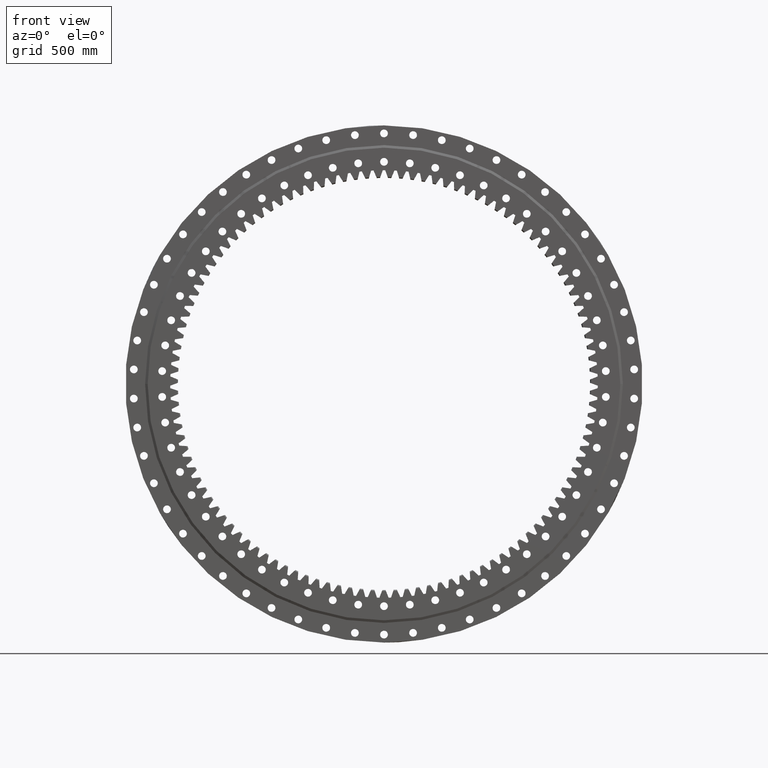
[diagram: clean part render]
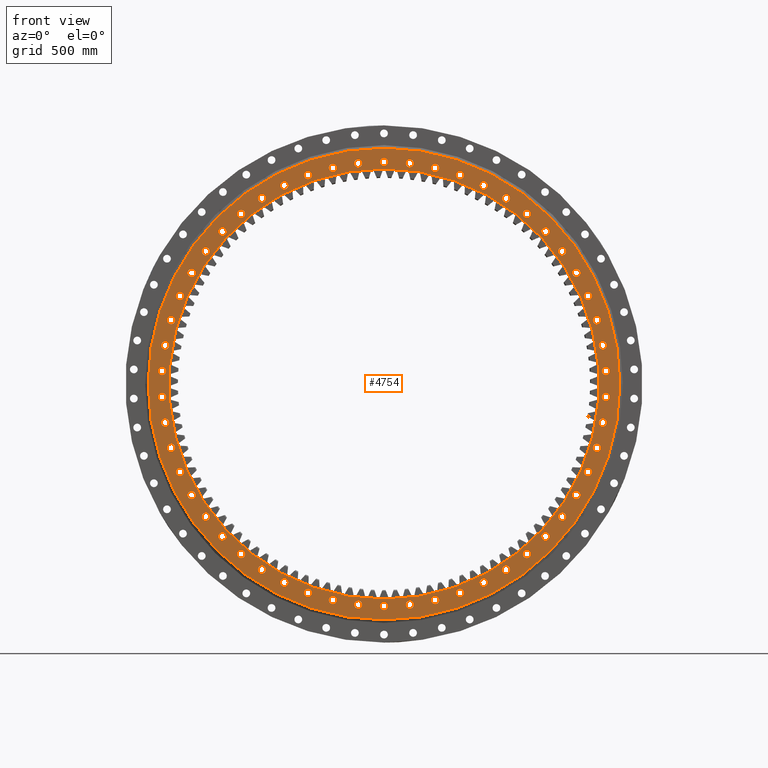
[diagram: same view with one face highlighted and labeled with its STEP entity id]
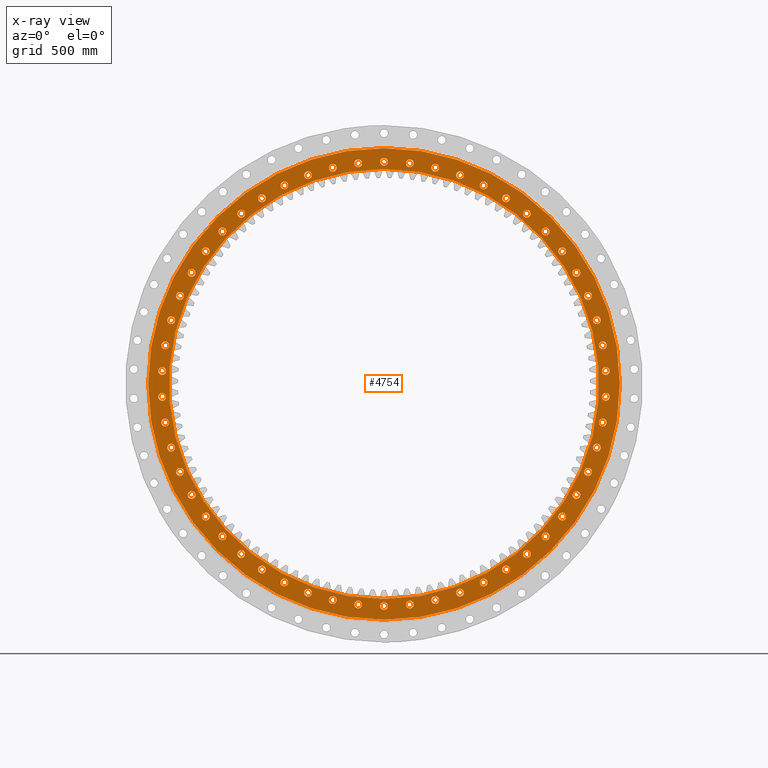
[diagram: x-ray of the same camera — body ghosted, the highlighted face saturated]
A machine part, front view. The second image highlights one B-rep face of the part: STEP entity #4754.
The next image is the same camera in x-ray: the body ghosted, the highlighted face saturated — about 0% of this face is hidden behind the body in this view.
In plain terms, the highlighted planar face has unit normal (0, 1, -0).
Its self-contained STEP definition (entity closure, byte-faithful):
#14 = EDGE_LOOP ( 'NONE', ( #28403, #35345 ) ) ;
#43 = CARTESIAN_POINT ( 'NONE',  ( -472.5775163121969600, -74.99999999999982900, 733.5196525330362600 ) ) ;
#111 = EDGE_CURVE ( 'NONE', #33521, #33332, #20572, .T. ) ;
#156 = EDGE_CURVE ( 'NONE', #16570, #326, #18831, .T. ) ;
#158 = AXIS2_PLACEMENT_3D ( 'NONE', #307, #19555, #3088 ) ;
#179 = CIRCLE ( 'NONE', #4177, 15.00000000000005200 ) ;
#185 = VERTEX_POINT ( 'NONE', #30331 ) ;
#221 = EDGE_LOOP ( 'NONE', ( #22004, #32369 ) ) ;
#229 = AXIS2_PLACEMENT_3D ( 'NONE', #33079, #1529, #26272 ) ;
#266 = CARTESIAN_POINT ( 'NONE',  ( -472.5775163121969600, -74.99999999999982900, 718.5196525330362600 ) ) ;
#282 = DIRECTION ( 'NONE',  ( -7.914688832368751900E-017, -1.000000000000000000, 6.617654413443253200E-017 ) ) ;
#283 = EDGE_LOOP ( 'NONE', ( #31798, #13842 ) ) ;
#284 = DIRECTION ( 'NONE',  ( -0.8021230329451266600, 0.0000000000000000000, 0.5971588063646983100 ) ) ;
#307 = CARTESIAN_POINT ( 'NONE',  ( -823.8709188881844100, -74.99999999999982900, 246.6509862342717800 ) ) ;
#313 = DIRECTION ( 'NONE',  ( -0.9848077924117061300, 0.0000000000000000000, -0.1736479542211246700 ) ) ;
#326 = VERTEX_POINT ( 'NONE', #10686 ) ;
#452 = AXIS2_PLACEMENT_3D ( 'NONE', #1867, #21077, #4651 ) ;
#464 = AXIS2_PLACEMENT_3D ( 'NONE', #15459, #34666, #18222 ) ;
#484 = DIRECTION ( 'NONE',  ( -7.914688832368751900E-017, -1.000000000000000000, 6.617654413443251900E-017 ) ) ;
#502 = ORIENTED_EDGE ( 'NONE', *, *, #19469, .F. ) ;
#515 = AXIS2_PLACEMENT_3D ( 'NONE', #14292, #14334, #10046 ) ;
#546 = AXIS2_PLACEMENT_3D ( 'NONE', #7096, #19696, #16273 ) ;
#562 = DIRECTION ( 'NONE',  ( -7.914688832368751900E-017, -1.000000000000000000, 6.617654413443251900E-017 ) ) ;
#585 = EDGE_CURVE ( 'NONE', #3946, #14046, #22224, .T. ) ;
#613 = EDGE_LOOP ( 'NONE', ( #20947, #10166 ) ) ;
#614 = CARTESIAN_POINT ( 'NONE',  ( 744.7818022251227600, -75.00000000000000000, -445.0000779933630500 ) ) ;
#650 = AXIS2_PLACEMENT_3D ( 'NONE', #19386, #2925, #22126 ) ;
#655 = AXIS2_PLACEMENT_3D ( 'NONE', #2052, #8255, #18987 ) ;
#735 = CARTESIAN_POINT ( 'NONE',  ( 858.5450120404826700, -74.99999999999998600, -50.00462279037400000 ) ) ;
#757 = FACE_BOUND ( 'NONE', #613, .T. ) ;
#772 = CIRCLE ( 'NONE', #17724, 14.99999999999998900 ) ;
#777 = DIRECTION ( 'NONE',  ( -0.9182160054910977200, 0.0000000000000000000, 0.3960800010856042600 ) ) ;
#903 = EDGE_CURVE ( 'NONE', #17994, #1369, #20081, .T. ) ;
#955 = CARTESIAN_POINT ( 'NONE',  ( 823.8709963758328700, -74.99999999999997200, 246.6507274075887600 ) ) ;
#990 = VERTEX_POINT ( 'NONE', #30623 ) ;
#1032 = DIRECTION ( 'NONE',  ( -7.914688832368751900E-017, -1.000000000000000000, 6.617654413443253200E-017 ) ) ;
#1071 = EDGE_CURVE ( 'NONE', #18114, #25394, #23088, .T. ) ;
#1099 = CARTESIAN_POINT ( 'NONE',  ( -858.5450277498551900, -74.99999999999984400, -65.00435307051370200 ) ) ;
#1164 = CARTESIAN_POINT ( 'NONE',  ( -1.239016377449656600E-011, -74.99999999999985800, 860.0000000000001100 ) ) ;
#1168 = ORIENTED_EDGE ( 'NONE', *, *, #17509, .F. ) ;
#1201 = ORIENTED_EDGE ( 'NONE', *, *, #15613, .F. ) ;
#1245 = DIRECTION ( 'NONE',  ( -7.914688832368751900E-017, -1.000000000000000000, 6.617654413443251900E-017 ) ) ;
#1255 = DIRECTION ( 'NONE',  ( 0.8660253514245540600, 0.0000000000000000000, -0.5000000906899696500 ) ) ;
#1260 = EDGE_LOOP ( 'NONE', ( #15483, #31770 ) ) ;
#1342 = AXIS2_PLACEMENT_3D ( 'NONE', #29011, #12608, #31755 ) ;
#1362 = DIRECTION ( 'NONE',  ( 0.3420200121198172500, 0.0000000000000000000, -0.9396926685409224800 ) ) ;
#1369 = VERTEX_POINT ( 'NONE', #24469 ) ;
#1390 = VERTEX_POINT ( 'NONE', #14002 ) ;
#1398 = AXIS2_PLACEMENT_3D ( 'NONE', #27881, #11509, #30680 ) ;
#1423 = CARTESIAN_POINT ( 'NONE',  ( 858.5450198951788300, -74.99999999999998600, 50.00448793045684700 ) ) ;
#1440 = AXIS2_PLACEMENT_3D ( 'NONE', #12365, #12443, #23905 ) ;
#1507 = EDGE_CURVE ( 'NONE', #22273, #30006, #5427, .T. ) ;
#1529 = DIRECTION ( 'NONE',  ( -7.914688832368750700E-017, -1.000000000000000000, 6.617654413443253200E-017 ) ) ;
#1535 = CARTESIAN_POINT ( 'NONE',  ( -99.84004529220169400, -74.99999999999997200, -839.1849713943996700 ) ) ;
#1585 = VERTEX_POINT ( 'NONE', #25739 ) ;
#1634 = FACE_BOUND ( 'NONE', #33665, .T. ) ;
#1659 = ORIENTED_EDGE ( 'NONE', *, *, #33735, .F. ) ;
#1669 = CARTESIAN_POINT ( 'NONE',  ( 552.7972638430391000, -75.00000000000000000, -658.7982886192477300 ) ) ;
#1679 = DIRECTION ( 'NONE',  ( -0.7273734539305907200, 0.0000000000000000000, 0.6862418367580649400 ) ) ;
#1782 = DIRECTION ( 'NONE',  ( 0.2306158820643309500, 0.0000000000000000000, 0.9730448678964863700 ) ) ;
#1808 = EDGE_CURVE ( 'NONE', #12890, #21534, #26009, .T. ) ;
#1833 = VERTEX_POINT ( 'NONE', #9587 ) ;
#1867 = CARTESIAN_POINT ( 'NONE',  ( -294.1374643063449000, -74.99999999999994300, -808.1356025392234400 ) ) ;
#1876 = CIRCLE ( 'NONE', #8070, 15.00000000000000400 ) ;
#1911 = CIRCLE ( 'NONE', #2961, 15.00000000000000200 ) ;
#1978 = DIRECTION ( 'NONE',  ( -7.914688832368751900E-017, -1.000000000000000000, 6.617654413443253200E-017 ) ) ;
#2052 = CARTESIAN_POINT ( 'NONE',  ( 823.8709963758328700, -74.99999999999997200, 246.6507274075887600 ) ) ;
#2054 = AXIS2_PLACEMENT_3D ( 'NONE', #34185, #17749, #1255 ) ;
#2081 = CARTESIAN_POINT ( 'NONE',  ( 294.1372104230551900, -75.00000000000000000, -808.1356949451890200 ) ) ;
#2110 = CARTESIAN_POINT ( 'NONE',  ( 99.83991111713275800, -74.99999999999987200, 839.1849870772276700 ) ) ;
#2111 = VERTEX_POINT ( 'NONE', #6087 ) ;
#2171 = CARTESIAN_POINT ( 'NONE',  ( -472.5778549065481700, -74.99999999999992900, -703.5194298360522700 ) ) ;
#2192 = EDGE_LOOP ( 'NONE', ( #19313, #18523 ) ) ;
#2204 = EDGE_CURVE ( 'NONE', #19249, #8150, #14865, .T. ) ;
#2209 = CIRCLE ( 'NONE', #20312, 15.00000000000005200 ) ;
#2213 = AXIS2_PLACEMENT_3D ( 'NONE', #12801, #4579, #4382 ) ;
#2313 = CIRCLE ( 'NONE', #14525, 14.99999999999998900 ) ;
#2325 = EDGE_CURVE ( 'NONE', #35036, #35598, #28569, .T. ) ;
#2350 = CIRCLE ( 'NONE', #650, 15.00000000000000000 ) ;
#2389 = CIRCLE ( 'NONE', #158, 14.99999999999995000 ) ;
#2430 = DIRECTION ( 'NONE',  ( -7.914688832368751900E-017, -1.000000000000000000, 6.617654413443251900E-017 ) ) ;
#2471 = FACE_BOUND ( 'NONE', #16885, .T. ) ;
#2502 = ORIENTED_EDGE ( 'NONE', *, *, #15981, .F. ) ;
#2514 = AXIS2_PLACEMENT_3D ( 'NONE', #26652, #10293, #29443 ) ;
#2523 = DIRECTION ( 'NONE',  ( -7.914688832368751900E-017, -1.000000000000000000, 6.617654413443253200E-017 ) ) ;
#2529 = CARTESIAN_POINT ( 'NONE',  ( 625.5413557870140300, -74.99999999999992900, 575.1677830923546300 ) ) ;
#2535 = ORIENTED_EDGE ( 'NONE', *, *, #16399, .F. ) ;
#2614 = DIRECTION ( 'NONE',  ( 0.3420201597264007100, 0.0000000000000000000, 0.9396926148165299900 ) ) ;
#2716 = ORIENTED_EDGE ( 'NONE', *, *, #5606, .F. ) ;
#2722 = CARTESIAN_POINT ( 'NONE',  ( 823.8709576320222800, -75.00000000000001400, -231.6508568209212900 ) ) ;
#2875 = CIRCLE ( 'NONE', #34447, 15.00000000000000200 ) ;
#2925 = DIRECTION ( 'NONE',  ( -7.914688832368751900E-017, -1.000000000000000000, 6.617654413443253200E-017 ) ) ;
#2933 = DIRECTION ( 'NONE',  ( -7.914688832368751900E-017, -1.000000000000000000, 6.617654413443253200E-017 ) ) ;
#2960 = ORIENTED_EDGE ( 'NONE', *, *, #2204, .T. ) ;
#2961 = AXIS2_PLACEMENT_3D ( 'NONE', #12771, #12193, #15299 ) ;
#3010 = AXIS2_PLACEMENT_3D ( 'NONE', #19427, #23072, #20134 ) ;
#3088 = DIRECTION ( 'NONE',  ( -0.9579894405676520100, 0.0000000000000000000, 0.2868034723654461800 ) ) ;
#3179 = EDGE_CURVE ( 'NONE', #29887, #24154, #33693, .T. ) ;
#3196 = CARTESIAN_POINT ( 'NONE',  ( 625.5412630836805200, -75.00000000000001400, -575.1678813521402800 ) ) ;
#3236 = CIRCLE ( 'NONE', #464, 15.00000000000001800 ) ;
#3262 = CIRCLE ( 'NONE', #17676, 15.00000000000001800 ) ;
#3307 = VERTEX_POINT ( 'NONE', #21653 ) ;
#3331 = CARTESIAN_POINT ( 'NONE',  ( -846.9347014740653800, -74.99999999999985800, -149.3372406301793100 ) ) ;
#3352 = FACE_BOUND ( 'NONE', #5640, .T. ) ;
#3366 = ORIENTED_EDGE ( 'NONE', *, *, #23719, .F. ) ;
#3393 = ORIENTED_EDGE ( 'NONE', *, *, #24751, .F. ) ;
#3473 = ORIENTED_EDGE ( 'NONE', *, *, #156, .F. ) ;
#3504 = EDGE_CURVE ( 'NONE', #31294, #27144, #24185, .T. ) ;
#3513 = DIRECTION ( 'NONE',  ( 0.9983081535354440000, 0.0000000000000000000, -0.05814491022137936700 ) ) ;
#3531 = CARTESIAN_POINT ( 'NONE',  ( -294.1370834813876600, -74.99999999999984400, 823.1357411481462800 ) ) ;
#3734 = DIRECTION ( 'NONE',  ( 0.9579895306695767100, 0.0000000000000000000, 0.2868031714041602800 ) ) ;
#3779 = EDGE_CURVE ( 'NONE', #33534, #19813, #25951, .T. ) ;
#3781 = FACE_BOUND ( 'NONE', #3803, .T. ) ;
#3803 = EDGE_LOOP ( 'NONE', ( #10338, #25936 ) ) ;
#3806 = CIRCLE ( 'NONE', #9809, 14.99999999999998900 ) ;
#3818 = ORIENTED_EDGE ( 'NONE', *, *, #26554, .F. ) ;
#3882 = ORIENTED_EDGE ( 'NONE', *, *, #19742, .F. ) ;
#3934 = VERTEX_POINT ( 'NONE', #13810 ) ;
#3946 = VERTEX_POINT ( 'NONE', #23810 ) ;
#4003 = EDGE_CURVE ( 'NONE', #13341, #1833, #33699, .T. ) ;
#4025 = CARTESIAN_POINT ( 'NONE',  ( 823.8709576320222800, -75.00000000000001400, -246.6508568209212900 ) ) ;
#4026 = CARTESIAN_POINT ( 'NONE',  ( -385.9674335762323400, -74.99999999999994300, -753.5240010686568400 ) ) ;
#4049 = EDGE_CURVE ( 'NONE', #3934, #32997, #32798, .T. ) ;
#4061 = VERTEX_POINT ( 'NONE', #16173 ) ;
#4076 = CARTESIAN_POINT ( 'NONE',  ( -5.936016624276557300E-015, -74.99999999999991500, 4.117057046502522500E-015 ) ) ;
#4101 = ORIENTED_EDGE ( 'NONE', *, *, #11586, .F. ) ;
#4128 = VERTEX_POINT ( 'NONE', #31214 ) ;
#4153 = ORIENTED_EDGE ( 'NONE', *, *, #19537, .F. ) ;
#4154 = DIRECTION ( 'NONE',  ( 0.9983081626688132800, 0.0000000000000000000, 0.05814475340749348400 ) ) ;
#4177 = AXIS2_PLACEMENT_3D ( 'NONE', #2081, #21302, #4882 ) ;
#4180 = CIRCLE ( 'NONE', #19008, 15.00000000000000200 ) ;
#4211 = CIRCLE ( 'NONE', #29876, 14.99999999999996400 ) ;
#4247 = FACE_BOUND ( 'NONE', #25287, .T. ) ;
#4262 = DIRECTION ( 'NONE',  ( -0.2306160349098660700, 0.0000000000000000000, -0.9730448316714145300 ) ) ;
#4355 = EDGE_CURVE ( 'NONE', #31359, #28712, #23582, .T. ) ;
#4364 = AXIS2_PLACEMENT_3D ( 'NONE', #33643, #17780, #18715 ) ;
#4375 = DIRECTION ( 'NONE',  ( -7.914688832368751900E-017, -1.000000000000000000, 6.617654413443251900E-017 ) ) ;
#4382 = DIRECTION ( 'NONE',  ( -0.1160930759211793200, 0.0000000000000000000, -0.9932383388306954600 ) ) ;
#4449 = VERTEX_POINT ( 'NONE', #3531 ) ;
#4467 = CIRCLE ( 'NONE', #9526, 14.99999999999998900 ) ;
#4484 = EDGE_CURVE ( 'NONE', #28712, #31359, #7294, .T. ) ;
#4492 = EDGE_CURVE ( 'NONE', #20438, #31133, #15445, .T. ) ;
#4540 = VERTEX_POINT ( 'NONE', #28793 ) ;
#4546 = CARTESIAN_POINT ( 'NONE',  ( -0.0001350884778813633100, -74.99999999999998600, -874.9999999999895400 ) ) ;
#4549 = DIRECTION ( 'NONE',  ( -7.914688832368751900E-017, -1.000000000000000000, 6.617654413443253200E-017 ) ) ;
#4551 = ORIENTED_EDGE ( 'NONE', *, *, #9638, .F. ) ;
#4555 = DIRECTION ( 'NONE',  ( -7.914688832368751900E-017, -1.000000000000000000, 6.617654413443253200E-017 ) ) ;
#4579 = DIRECTION ( 'NONE',  ( -7.914688832368751900E-017, -1.000000000000000000, 6.617654413443251900E-017 ) ) ;
#4597 = CIRCLE ( 'NONE', #22291, 14.99999999999997500 ) ;
#4637 = ORIENTED_EDGE ( 'NONE', *, *, #3504, .F. ) ;
#4651 = DIRECTION ( 'NONE',  ( -0.3420203073329732300, 0.0000000000000000000, -0.9396925610921151900 ) ) ;
#4652 = FACE_BOUND ( 'NONE', #30762, .T. ) ;
#4754 = ADVANCED_FACE ( 'NONE', ( #33429, #26943, #34320, #19683, #20566, #5082, #26109, #18825, #11556, #4247, #32535, #25227, #17999, #10690, #3352, #31702, #24370, #17129, #9856, #2471, #30841, #23552, #16254, #8984, #1634, #29966, #22681, #15416, #8103, #757, #29118, #21797, #14527, #7263, #35579, #28240, #20970, #13670, #6381, #34734, #27360, #20105, #12827, #5491, #33856, #26516, #19235, #11977, #4652, #32959, #25637, #18398, #11100, #3781, #32096, #24781 ), #31332, .F. ) ;
#4782 = CARTESIAN_POINT ( 'NONE',  ( 789.6658182281887500, -75.00000000000001400, -355.6286768931904000 ) ) ;
#4882 = DIRECTION ( 'NONE',  ( 0.3420200121198172500, 0.0000000000000000000, -0.9396926685409224800 ) ) ;
#4914 = ORIENTED_EDGE ( 'NONE', *, *, #15160, .F. ) ;
#4973 = DIRECTION ( 'NONE',  ( -7.914688832368751900E-017, -1.000000000000000000, 6.617654413443253200E-017 ) ) ;
#5078 = CARTESIAN_POINT ( 'NONE',  ( -198.3293956810034600, -74.99999999999984400, 836.8186486980366700 ) ) ;
#5082 = FACE_BOUND ( 'NONE', #32942, .T. ) ;
#5136 = CARTESIAN_POINT ( 'NONE',  ( 198.3296585753133700, -74.99999999999987200, 836.8185863909810700 ) ) ;
#5148 = CARTESIAN_POINT ( 'NONE',  ( -1.238788673144352600E-011, -74.99999999999985800, 845.0000000000001100 ) ) ;
#5162 = AXIS2_PLACEMENT_3D ( 'NONE', #24236, #7838, #26968 ) ;
#5225 = EDGE_CURVE ( 'NONE', #7771, #24858, #6349, .T. ) ;
#5260 = CARTESIAN_POINT ( 'NONE',  ( 552.7972638430391000, -75.00000000000000000, -643.7982886192477300 ) ) ;
#5278 = CARTESIAN_POINT ( 'NONE',  ( -198.3293956810034600, -74.99999999999984400, 821.8186486980366700 ) ) ;
#5417 = EDGE_CURVE ( 'NONE', #24628, #4061, #8497, .T. ) ;
#5426 = CIRCLE ( 'NONE', #13132, 15.00000000000005200 ) ;
#5427 = CIRCLE ( 'NONE', #11868, 14.99999999999998900 ) ;
#5450 = ORIENTED_EDGE ( 'NONE', *, *, #12529, .F. ) ;
#5491 = FACE_BOUND ( 'NONE', #25237, .T. ) ;
#5532 = VERTEX_POINT ( 'NONE', #11743 ) ;
#5564 = CARTESIAN_POINT ( 'NONE',  ( 846.9346780162150000, -74.99999999999998600, 134.3373736663753800 ) ) ;
#5606 = EDGE_CURVE ( 'NONE', #30820, #34262, #11494, .T. ) ;
#5640 = EDGE_LOOP ( 'NONE', ( #33944, #23422 ) ) ;
#5660 = EDGE_LOOP ( 'NONE', ( #16232, #4914 ) ) ;
#5669 = EDGE_LOOP ( 'NONE', ( #5450, #14490 ) ) ;
#5748 = VERTEX_POINT ( 'NONE', #23139 ) ;
#5825 = EDGE_CURVE ( 'NONE', #31926, #8673, #6317, .T. ) ;
#5826 = CIRCLE ( 'NONE', #19072, 15.00000000000000900 ) ;
#5898 = EDGE_CURVE ( 'NONE', #326, #16570, #25574, .T. ) ;
#5903 = CARTESIAN_POINT ( 'NONE',  ( 625.5412630836805200, -75.00000000000001400, -590.1678813521402800 ) ) ;
#6010 = CARTESIAN_POINT ( 'NONE',  ( 789.6658717339992100, -74.99999999999997200, 325.6285528527867000 ) ) ;
#6035 = AXIS2_PLACEMENT_3D ( 'NONE', #18575, #14931, #18167 ) ;
#6086 = CARTESIAN_POINT ( 'NONE',  ( -744.7819373135882900, -74.99999999999988600, -429.9998440132491700 ) ) ;
#6087 = CARTESIAN_POINT ( 'NONE',  ( -744.7817346808564000, -74.99999999999982900, 445.0001949834147000 ) ) ;
#6130 = DIRECTION ( 'NONE',  ( -0.9848077924117061300, 0.0000000000000000000, -0.1736479542211246700 ) ) ;
#6141 = DIRECTION ( 'NONE',  ( 0.9579894856186262900, 0.0000000000000000000, -0.2868033218848060100 ) ) ;
#6311 = CARTESIAN_POINT ( 'NONE',  ( 198.3295271281730000, -75.00000000000000000, -836.8186175445164300 ) ) ;
#6317 = CIRCLE ( 'NONE', #17478, 15.00000000000000700 ) ;
#6349 = CIRCLE ( 'NONE', #2213, 14.99999999999996400 ) ;
#6367 = VERTEX_POINT ( 'NONE', #17153 ) ;
#6381 = FACE_BOUND ( 'NONE', #16540, .T. ) ;
#6415 = EDGE_CURVE ( 'NONE', #31201, #6367, #11883, .T. ) ;
#6442 = DIRECTION ( 'NONE',  ( -7.914688832368751900E-017, -1.000000000000000000, 6.617654413443253200E-017 ) ) ;
#6481 = VERTEX_POINT ( 'NONE', #33217 ) ;
#6523 = CIRCLE ( 'NONE', #20546, 15.00000000000004400 ) ;
#6535 = EDGE_CURVE ( 'NONE', #9499, #18233, #17454, .T. ) ;
#6636 = EDGE_CURVE ( 'NONE', #1390, #4449, #5826, .T. ) ;
#6721 = EDGE_CURVE ( 'NONE', #14046, #3946, #26819, .T. ) ;
#6767 = ORIENTED_EDGE ( 'NONE', *, *, #23947, .F. ) ;
#6791 = ORIENTED_EDGE ( 'NONE', *, *, #11944, .F. ) ;
#6803 = DIRECTION ( 'NONE',  ( 0.9579894856186262900, 0.0000000000000000000, -0.2868033218848060100 ) ) ;
#6847 = DIRECTION ( 'NONE',  ( 5.551115123125783900E-017, 6.081747601342955700E-017, 1.000000000000000000 ) ) ;
#6862 = EDGE_CURVE ( 'NONE', #16921, #31050, #7136, .T. ) ;
#6872 = CARTESIAN_POINT ( 'NONE',  ( -625.5414484903490100, -74.99999999999990100, -605.1676848325364500 ) ) ;
#6875 = CIRCLE ( 'NONE', #35062, 14.99999999999996300 ) ;
#6888 = EDGE_LOOP ( 'NONE', ( #29373, #3393 ) ) ;
#6919 = ORIENTED_EDGE ( 'NONE', *, *, #4492, .F. ) ;
#7016 = AXIS2_PLACEMENT_3D ( 'NONE', #32818, #32936, #30357 ) ;
#7056 = EDGE_CURVE ( 'NONE', #9210, #31013, #1911, .T. ) ;
#7096 = CARTESIAN_POINT ( 'NONE',  ( -5.936016624276557300E-015, -74.99999999999991500, 7.008539237159723900E-015 ) ) ;
#7124 = EDGE_LOOP ( 'NONE', ( #12708, #12153 ) ) ;
#7136 = CIRCLE ( 'NONE', #11049, 14.99999999999999300 ) ;
#7156 = DIRECTION ( 'NONE',  ( -7.914688832368751900E-017, -1.000000000000000000, 6.617654413443253200E-017 ) ) ;
#7169 = AXIS2_PLACEMENT_3D ( 'NONE', #24232, #7833, #26965 ) ;
#7263 = FACE_BOUND ( 'NONE', #24432, .T. ) ;
#7293 = VERTEX_POINT ( 'NONE', #2110 ) ;
#7294 = CIRCLE ( 'NONE', #32547, 14.99999999999997200 ) ;
#7314 = DIRECTION ( 'NONE',  ( -7.914688832368751900E-017, -1.000000000000000000, 6.617654413443253200E-017 ) ) ;
#7332 = CARTESIAN_POINT ( 'NONE',  ( -552.7971603592347900, -74.99999999999984400, 643.7983754524343600 ) ) ;
#7431 = CIRCLE ( 'NONE', #12738, 15.00000000000000200 ) ;
#7443 = EDGE_CURVE ( 'NONE', #14102, #8429, #20808, .T. ) ;
#7477 = DIRECTION ( 'NONE',  ( -7.914688832368751900E-017, -1.000000000000000000, 6.617654413443253200E-017 ) ) ;
#7539 = CIRCLE ( 'NONE', #18237, 15.00000000000004400 ) ;
#7568 = CARTESIAN_POINT ( 'NONE',  ( -625.5414484903490100, -74.99999999999990100, -590.1676848325364500 ) ) ;
#7619 = DIRECTION ( 'NONE',  ( -7.914688832368751900E-017, -1.000000000000000000, 6.617654413443253200E-017 ) ) ;
#7682 = EDGE_CURVE ( 'NONE', #1833, #13341, #1876, .T. ) ;
#7691 = EDGE_LOOP ( 'NONE', ( #16930, #28453 ) ) ;
#7717 = CARTESIAN_POINT ( 'NONE',  ( 858.5450120404826700, -74.99999999999998600, -50.00462279037400000 ) ) ;
#7727 = CARTESIAN_POINT ( 'NONE',  ( -789.6659252397997800, -74.99999999999987200, -355.6284288123519600 ) ) ;
#7763 = DIRECTION ( 'NONE',  ( -7.914688832368750700E-017, -1.000000000000000000, 6.617654413443253200E-017 ) ) ;
#7771 = VERTEX_POINT ( 'NONE', #19088 ) ;
#7783 = VERTEX_POINT ( 'NONE', #5278 ) ;
#7805 = DIRECTION ( 'NONE',  ( 0.8021232205480682800, 0.0000000000000000000, 0.5971585543702736500 ) ) ;
#7833 = DIRECTION ( 'NONE',  ( -7.914688832368751900E-017, -1.000000000000000000, 6.617654413443253200E-017 ) ) ;
#7838 = DIRECTION ( 'NONE',  ( -7.914688832368751900E-017, -1.000000000000000000, 6.617654413443253200E-017 ) ) ;
#7842 = CARTESIAN_POINT ( 'NONE',  ( 846.9346780162150000, -74.99999999999998600, 164.3373736663754100 ) ) ;
#7856 = EDGE_LOOP ( 'NONE', ( #4101, #30674 ) ) ;
#7862 = DIRECTION ( 'NONE',  ( -0.2306155763732462600, 0.0000000000000000000, 0.9730449403465574200 ) ) ;
#7888 = AXIS2_PLACEMENT_3D ( 'NONE', #33748, #33712, #33871 ) ;
#7896 = EDGE_CURVE ( 'NONE', #15045, #32112, #30647, .T. ) ;
#7962 = EDGE_CURVE ( 'NONE', #19813, #33534, #29781, .T. ) ;
#7983 = CARTESIAN_POINT ( 'NONE',  ( -689.8258083328163400, -74.99999999999982900, 528.5565734736308100 ) ) ;
#7987 = CARTESIAN_POINT ( 'NONE',  ( -1.238933110722809800E-011, -74.99999999999985800, 875.0000000000001100 ) ) ;
#8025 = DIRECTION ( 'NONE',  ( -7.914688832368751900E-017, -1.000000000000000000, 6.617654413443253200E-017 ) ) ;
#8045 = AXIS2_PLACEMENT_3D ( 'NONE', #27867, #11495, #30665 ) ;
#8066 = DIRECTION ( 'NONE',  ( -0.8660255085041792500, 0.0000000000000000000, -0.4999998186200447800 ) ) ;
#8070 = AXIS2_PLACEMENT_3D ( 'NONE', #19831, #16336, #8066 ) ;
#8089 = AXIS2_PLACEMENT_3D ( 'NONE', #5078, #24262, #7862 ) ;
#8103 = FACE_BOUND ( 'NONE', #12851, .T. ) ;
#8115 = CIRCLE ( 'NONE', #10362, 15.00000000000001800 ) ;
#8149 = DIRECTION ( 'NONE',  ( -0.7273737773143702500, 0.0000000000000000000, -0.6862414939913097400 ) ) ;
#8150 = VERTEX_POINT ( 'NONE', #19629 ) ;
#8223 = DIRECTION ( 'NONE',  ( -7.914688832368751900E-017, -1.000000000000000000, 6.617654413443251900E-017 ) ) ;
#8238 = EDGE_LOOP ( 'NONE', ( #18551, #3473 ) ) ;
#8255 = DIRECTION ( 'NONE',  ( -7.914688832368751900E-017, -1.000000000000000000, 6.617654413443253200E-017 ) ) ;
#8260 = CARTESIAN_POINT ( 'NONE',  ( 744.7818697693584200, -74.99999999999994300, 429.9999610033221400 ) ) ;
#8286 = EDGE_CURVE ( 'NONE', #8150, #19249, #32311, .T. ) ;
#8331 = CIRCLE ( 'NONE', #29200, 15.00000000000005200 ) ;
#8360 = AXIS2_PLACEMENT_3D ( 'NONE', #34606, #18158, #1679 ) ;
#8406 = CARTESIAN_POINT ( 'NONE',  ( -552.7974708105884900, -74.99999999999991500, -673.7981149528409300 ) ) ;
#8429 = VERTEX_POINT ( 'NONE', #8848 ) ;
#8436 = DIRECTION ( 'NONE',  ( -0.4487993413677265300, 0.0000000000000000000, -0.8936325593821518000 ) ) ;
#8497 = CIRCLE ( 'NONE', #29842, 15.00000000000001200 ) ;
#8508 = ORIENTED_EDGE ( 'NONE', *, *, #6636, .F. ) ;
#8535 = CIRCLE ( 'NONE', #34277, 15.00000000000000900 ) ;
#8545 = ORIENTED_EDGE ( 'NONE', *, *, #15876, .T. ) ;
#8589 = DIRECTION ( 'NONE',  ( -7.914688832368751900E-017, -1.000000000000000000, 6.617654413443251900E-017 ) ) ;
#8592 = ORIENTED_EDGE ( 'NONE', *, *, #903, .F. ) ;
#8666 = CIRCLE ( 'NONE', #7016, 14.99999999999998000 ) ;
#8673 = VERTEX_POINT ( 'NONE', #30716 ) ;
#8684 = CIRCLE ( 'NONE', #33676, 14.99999999999999600 ) ;
#8848 = CARTESIAN_POINT ( 'NONE',  ( 823.8709576320222800, -75.00000000000001400, -261.6508568209213200 ) ) ;
#8863 = EDGE_CURVE ( 'NONE', #30004, #11280, #4467, .T. ) ;
#8865 = CARTESIAN_POINT ( 'NONE',  ( -385.9670714177920000, -74.99999999999984400, 768.5241829514365000 ) ) ;
#8882 = ORIENTED_EDGE ( 'NONE', *, *, #4484, .F. ) ;
#8984 = FACE_BOUND ( 'NONE', #21519, .T. ) ;
#9096 = CARTESIAN_POINT ( 'NONE',  ( 858.5450198951788300, -74.99999999999998600, 65.00448793045684700 ) ) ;
#9124 = CARTESIAN_POINT ( 'NONE',  ( 385.9671921372891500, -75.00000000000000000, -753.5241223238585900 ) ) ;
#9140 = CIRCLE ( 'NONE', #515, 14.99999999999997500 ) ;
#9146 = CIRCLE ( 'NONE', #21440, 14.99999999999997500 ) ;
#9169 = EDGE_CURVE ( 'NONE', #19722, #10894, #10472, .T. ) ;
#9195 = CIRCLE ( 'NONE', #3010, 14.99999999999998400 ) ;
#9210 = VERTEX_POINT ( 'NONE', #14301 ) ;
#9227 = AXIS2_PLACEMENT_3D ( 'NONE', #13369, #32533, #16143 ) ;
#9244 = DIRECTION ( 'NONE',  ( -7.914688832368751900E-017, -1.000000000000000000, 6.617654413443253200E-017 ) ) ;
#9285 = AXIS2_PLACEMENT_3D ( 'NONE', #27443, #11065, #30239 ) ;
#9312 = AXIS2_PLACEMENT_3D ( 'NONE', #20983, #4555, #23742 ) ;
#9369 = VERTEX_POINT ( 'NONE', #22861 ) ;
#9373 = CARTESIAN_POINT ( 'NONE',  ( -744.7817346808564000, -74.99999999999982900, 430.0001949834147000 ) ) ;
#9397 = DIRECTION ( 'NONE',  ( -7.914688832368751900E-017, -1.000000000000000000, 6.617654413443253200E-017 ) ) ;
#9462 = DIRECTION ( 'NONE',  ( 0.9182160677071900000, 0.0000000000000000000, -0.3960798568525605900 ) ) ;
#9499 = VERTEX_POINT ( 'NONE', #5564 ) ;
#9526 = AXIS2_PLACEMENT_3D ( 'NONE', #35614, #19039, #18503 ) ;
#9585 = VERTEX_POINT ( 'NONE', #13590 ) ;
#9587 = CARTESIAN_POINT ( 'NONE',  ( -744.7819373135882900, -74.99999999999988600, -414.9998440132491700 ) ) ;
#9598 = CARTESIAN_POINT ( 'NONE',  ( -99.83964276701226500, -74.99999999999984400, 839.1850184428170700 ) ) ;
#9638 = EDGE_CURVE ( 'NONE', #17976, #34274, #13857, .T. ) ;
#9689 = ORIENTED_EDGE ( 'NONE', *, *, #7896, .F. ) ;
#9702 = AXIS2_PLACEMENT_3D ( 'NONE', #32857, #16452, #35652 ) ;
#9714 = AXIS2_PLACEMENT_3D ( 'NONE', #35555, #19096, #2614 ) ;
#9739 = DIRECTION ( 'NONE',  ( 0.5495088711360320800, 0.0000000000000000000, -0.8354878817450338600 ) ) ;
#9759 = EDGE_CURVE ( 'NONE', #31013, #9210, #11288, .T. ) ;
#9764 = CARTESIAN_POINT ( 'NONE',  ( -625.5411703803147200, -74.99999999999981500, 605.1679796119290100 ) ) ;
#9794 = CARTESIAN_POINT ( 'NONE',  ( 744.7818022251227600, -75.00000000000000000, -415.0000779933630500 ) ) ;
#9808 = VERTEX_POINT ( 'NONE', #28834 ) ;
#9809 = AXIS2_PLACEMENT_3D ( 'NONE', #23876, #7477, #26600 ) ;
#9823 = AXIS2_PLACEMENT_3D ( 'NONE', #10388, #14187, #20933 ) ;
#9856 = FACE_BOUND ( 'NONE', #13471, .T. ) ;
#9922 = CARTESIAN_POINT ( 'NONE',  ( -846.9347014740653800, -74.99999999999985800, -164.3372406301793100 ) ) ;
#9992 = VERTEX_POINT ( 'NONE', #13949 ) ;
#10019 = DIRECTION ( 'NONE',  ( 0.6427875160965432800, 0.0000000000000000000, -0.7660445216502994600 ) ) ;
#10046 = DIRECTION ( 'NONE',  ( 0.9182161299232602900, 0.0000000000000000000, 0.3960797126195058100 ) ) ;
#10051 = CIRCLE ( 'NONE', #25984, 15.00000000000003600 ) ;
#10078 = EDGE_CURVE ( 'NONE', #19834, #20707, #9140, .T. ) ;
#10109 = CARTESIAN_POINT ( 'NONE',  ( -294.1370834813876600, -74.99999999999984400, 808.1357411481462800 ) ) ;
#10166 = ORIENTED_EDGE ( 'NONE', *, *, #13508, .F. ) ;
#10202 = DIRECTION ( 'NONE',  ( -7.914688832368751900E-017, -1.000000000000000000, 6.617654413443253200E-017 ) ) ;
#10247 = DIRECTION ( 'NONE',  ( 0.7273735617252014000, 0.0000000000000000000, -0.6862417225024972600 ) ) ;
#10289 = EDGE_CURVE ( 'NONE', #9369, #7783, #24080, .T. ) ;
#10293 = DIRECTION ( 'NONE',  ( -7.914688832368751900E-017, -1.000000000000000000, 6.617654413443253200E-017 ) ) ;
#10336 = CARTESIAN_POINT ( 'NONE',  ( 385.9671921372891500, -75.00000000000000000, -768.5241223238585900 ) ) ;
#10338 = ORIENTED_EDGE ( 'NONE', *, *, #23889, .F. ) ;
#10348 = EDGE_CURVE ( 'NONE', #21534, #12890, #8684, .T. ) ;
#10362 = AXIS2_PLACEMENT_3D ( 'NONE', #29321, #12903, #32066 ) ;
#10388 = CARTESIAN_POINT ( 'NONE',  ( 689.8258890020891800, -75.00000000000000000, -513.5564651160352700 ) ) ;
#10394 = CARTESIAN_POINT ( 'NONE',  ( 689.8259696713303100, -74.99999999999994300, 513.5563567584466700 ) ) ;
#10396 = EDGE_LOOP ( 'NONE', ( #9689, #3366 ) ) ;
#10418 = AXIS2_PLACEMENT_3D ( 'NONE', #19402, #2933, #22138 ) ;
#10472 = CIRCLE ( 'NONE', #1440, 14.99999999999997500 ) ;
#10500 = DIRECTION ( 'NONE',  ( 0.9983081535354440000, 0.0000000000000000000, -0.05814491022137936700 ) ) ;
#10566 = DIRECTION ( 'NONE',  ( -7.914688832368751900E-017, -1.000000000000000000, 6.617654413443253200E-017 ) ) ;
#10572 = EDGE_CURVE ( 'NONE', #9992, #26609, #17250, .T. ) ;
#10580 = EDGE_CURVE ( 'NONE', #30528, #18803, #30085, .T. ) ;
#10631 = DIRECTION ( 'NONE',  ( -7.914688832368751900E-017, -1.000000000000000000, 6.617654413443251900E-017 ) ) ;
#10637 = CIRCLE ( 'NONE', #24496, 14.99999999999997300 ) ;
#10686 = CARTESIAN_POINT ( 'NONE',  ( -789.6659252397997800, -74.99999999999987200, -325.6284288123519600 ) ) ;
#10690 = FACE_BOUND ( 'NONE', #25502, .T. ) ;
#10728 = ORIENTED_EDGE ( 'NONE', *, *, #3779, .F. ) ;
#10788 = ORIENTED_EDGE ( 'NONE', *, *, #32233, .F. ) ;
#10839 = CIRCLE ( 'NONE', #12304, 15.00000000000005300 ) ;
#10892 = VERTEX_POINT ( 'NONE', #19817 ) ;
#10894 = VERTEX_POINT ( 'NONE', #12519 ) ;
#10940 = AXIS2_PLACEMENT_3D ( 'NONE', #3331, #22553, #6130 ) ;
#10993 = DIRECTION ( 'NONE',  ( 0.2306157292187915900, 0.0000000000000000000, -0.9730449041215337700 ) ) ;
#11049 = AXIS2_PLACEMENT_3D ( 'NONE', #7568, #8223, #8149 ) ;
#11065 = DIRECTION ( 'NONE',  ( -7.914688832368751900E-017, -1.000000000000000000, 6.617654413443253200E-017 ) ) ;
#11100 = FACE_BOUND ( 'NONE', #22070, .T. ) ;
#11118 = AXIS2_PLACEMENT_3D ( 'NONE', #10109, #29251, #12841 ) ;
#11125 = CARTESIAN_POINT ( 'NONE',  ( 625.5412630836805200, -75.00000000000001400, -605.1678813521402800 ) ) ;
#11239 = DIRECTION ( 'NONE',  ( -7.914688832368751900E-017, -1.000000000000000000, 6.617654413443253200E-017 ) ) ;
#11280 = VERTEX_POINT ( 'NONE', #21457 ) ;
#11288 = CIRCLE ( 'NONE', #18478, 15.00000000000000200 ) ;
#11293 = EDGE_CURVE ( 'NONE', #14606, #10892, #9195, .T. ) ;
#11308 = CARTESIAN_POINT ( 'NONE',  ( -789.6657647223489700, -74.99999999999982900, 340.6288009336086600 ) ) ;
#11490 = ORIENTED_EDGE ( 'NONE', *, *, #1507, .F. ) ;
#11494 = CIRCLE ( 'NONE', #25442, 14.99999999999998900 ) ;
#11495 = DIRECTION ( 'NONE',  ( -7.914688832368751900E-017, -1.000000000000000000, 6.617654413443251900E-017 ) ) ;
#11509 = DIRECTION ( 'NONE',  ( -7.914688832368751900E-017, -1.000000000000000000, 6.617654413443253200E-017 ) ) ;
#11511 = VERTEX_POINT ( 'NONE', #28800 ) ;
#11542 = VERTEX_POINT ( 'NONE', #29975 ) ;
#11546 = DIRECTION ( 'NONE',  ( -7.914688832368751900E-017, -1.000000000000000000, 6.617654413443253200E-017 ) ) ;
#11556 = FACE_BOUND ( 'NONE', #24701, .T. ) ;
#11557 = CARTESIAN_POINT ( 'NONE',  ( -552.7974708105884900, -74.99999999999991500, -658.7981149528409300 ) ) ;
#11586 = EDGE_CURVE ( 'NONE', #18233, #9499, #23322, .T. ) ;
#11605 = DIRECTION ( 'NONE',  ( -0.4487989202532352600, 0.0000000000000000000, 0.8936327708737690200 ) ) ;
#11626 = CARTESIAN_POINT ( 'NONE',  ( -789.6657647223489700, -74.99999999999982900, 355.6288009336086600 ) ) ;
#11712 = CARTESIAN_POINT ( 'NONE',  ( 689.8258890020891800, -75.00000000000000000, -528.5564651160352700 ) ) ;
#11743 = CARTESIAN_POINT ( 'NONE',  ( 472.5777420417692300, -74.99999999999991500, 703.5195040684027400 ) ) ;
#11843 = CARTESIAN_POINT ( 'NONE',  ( -846.9347014740653800, -74.99999999999985800, -134.3372406301792800 ) ) ;
#11868 = AXIS2_PLACEMENT_3D ( 'NONE', #27062, #7619, #7805 ) ;
#11883 = CIRCLE ( 'NONE', #655, 14.99999999999997000 ) ;
#11944 = EDGE_CURVE ( 'NONE', #3307, #20408, #7431, .T. ) ;
#11977 = FACE_BOUND ( 'NONE', #33089, .T. ) ;
#12071 = DIRECTION ( 'NONE',  ( -7.914688832368751900E-017, -1.000000000000000000, 6.617654413443251900E-017 ) ) ;
#12117 = DIRECTION ( 'NONE',  ( -0.8660252728847088700, 0.0000000000000000000, 0.5000002267249141800 ) ) ;
#12134 = DIRECTION ( 'NONE',  ( -7.914688832368751900E-017, -1.000000000000000000, 6.617654413443251900E-017 ) ) ;
#12147 = DIRECTION ( 'NONE',  ( -7.914688832368751900E-017, -1.000000000000000000, 6.617654413443253200E-017 ) ) ;
#12153 = ORIENTED_EDGE ( 'NONE', *, *, #30604, .F. ) ;
#12159 = CARTESIAN_POINT ( 'NONE',  ( 689.8258890020891800, -75.00000000000000000, -498.5564651160352700 ) ) ;
#12193 = DIRECTION ( 'NONE',  ( -7.914688832368751900E-017, -1.000000000000000000, 6.617654413443253200E-017 ) ) ;
#12269 = ORIENTED_EDGE ( 'NONE', *, *, #6862, .F. ) ;
#12304 = AXIS2_PLACEMENT_3D ( 'NONE', #16788, #282, #19527 ) ;
#12365 = CARTESIAN_POINT ( 'NONE',  ( 846.9346545583478000, -75.00000000000000000, -149.3375067025431000 ) ) ;
#12443 = DIRECTION ( 'NONE',  ( -7.914688832368751900E-017, -1.000000000000000000, 6.617654413443253200E-017 ) ) ;
#12456 = EDGE_CURVE ( 'NONE', #34274, #17976, #14664, .T. ) ;
#12469 = ORIENTED_EDGE ( 'NONE', *, *, #8863, .F. ) ;
#12505 = EDGE_LOOP ( 'NONE', ( #28877, #23154 ) ) ;
#12519 = CARTESIAN_POINT ( 'NONE',  ( 846.9346545583478000, -75.00000000000000000, -134.3375067025430700 ) ) ;
#12529 = EDGE_CURVE ( 'NONE', #34956, #33188, #6523, .T. ) ;
#12534 = CARTESIAN_POINT ( 'NONE',  ( 858.5450198951788300, -74.99999999999998600, 35.00448793045684000 ) ) ;
#12608 = DIRECTION ( 'NONE',  ( -7.914688832368753200E-017, -1.000000000000000000, 6.617654413443253200E-017 ) ) ;
#12697 = EDGE_CURVE ( 'NONE', #18803, #30528, #8666, .T. ) ;
#12708 = ORIENTED_EDGE ( 'NONE', *, *, #21497, .F. ) ;
#12729 = AXIS2_PLACEMENT_3D ( 'NONE', #30867, #30831, #21549 ) ;
#12738 = AXIS2_PLACEMENT_3D ( 'NONE', #6311, #33927, #10993 ) ;
#12767 = CARTESIAN_POINT ( 'NONE',  ( 198.3295271281730000, -75.00000000000000000, -821.8186175445164300 ) ) ;
#12771 = CARTESIAN_POINT ( 'NONE',  ( 472.5776291769990400, -75.00000000000001400, -718.5195783007217200 ) ) ;
#12772 = CARTESIAN_POINT ( 'NONE',  ( -294.1374643063449000, -74.99999999999994300, -793.1356025392234400 ) ) ;
#12801 = CARTESIAN_POINT ( 'NONE',  ( -99.84004529220168000, -74.99999999999997200, -854.1849713943996700 ) ) ;
#12827 = FACE_BOUND ( 'NONE', #35091, .T. ) ;
#12841 = DIRECTION ( 'NONE',  ( -0.3420198645132282400, 0.0000000000000000000, 0.9396927222652908800 ) ) ;
#12851 = EDGE_LOOP ( 'NONE', ( #15940, #4637 ) ) ;
#12873 = AXIS2_PLACEMENT_3D ( 'NONE', #22878, #6442, #25583 ) ;
#12890 = VERTEX_POINT ( 'NONE', #11125 ) ;
#12903 = DIRECTION ( 'NONE',  ( -7.914688832368751900E-017, -1.000000000000000000, 6.617654413443251900E-017 ) ) ;
#12929 = CARTESIAN_POINT ( 'NONE',  ( 472.5776291769990400, -75.00000000000001400, -703.5195783007217200 ) ) ;
#12990 = CARTESIAN_POINT ( 'NONE',  ( -472.5778549065481700, -74.99999999999992900, -718.5194298360523800 ) ) ;
#13086 = DIRECTION ( 'NONE',  ( 0.4487990606247404000, 0.0000000000000000000, -0.8936327003765868200 ) ) ;
#13132 = AXIS2_PLACEMENT_3D ( 'NONE', #34273, #17852, #1362 ) ;
#13176 = CARTESIAN_POINT ( 'NONE',  ( 744.7818697693584200, -74.99999999999994300, 429.9999610033221400 ) ) ;
#13189 = CARTESIAN_POINT ( 'NONE',  ( 385.9671921372891500, -75.00000000000000000, -768.5241223238585900 ) ) ;
#13233 = CARTESIAN_POINT ( 'NONE',  ( 472.5777420417692300, -74.99999999999991500, 733.5195040684027400 ) ) ;
#13325 = DIRECTION ( 'NONE',  ( -7.914688832368751900E-017, -1.000000000000000000, 6.617654413443253200E-017 ) ) ;
#13341 = VERTEX_POINT ( 'NONE', #26059 ) ;
#13343 = AXIS2_PLACEMENT_3D ( 'NONE', #22764, #22798, #6141 ) ;
#13369 = CARTESIAN_POINT ( 'NONE',  ( -858.5450041857641300, -74.99999999999984400, 50.00475765031467300 ) ) ;
#13471 = EDGE_LOOP ( 'NONE', ( #502, #22635 ) ) ;
#13506 = CIRCLE ( 'NONE', #21205, 15.00000000000004400 ) ;
#13508 = EDGE_CURVE ( 'NONE', #35113, #35228, #6875, .T. ) ;
#13590 = CARTESIAN_POINT ( 'NONE',  ( -0.0001350884778778610400, -74.99999999999998600, -844.9999999999895400 ) ) ;
#13614 = ORIENTED_EDGE ( 'NONE', *, *, #1808, .F. ) ;
#13621 = DIRECTION ( 'NONE',  ( 0.8021232205480682800, 0.0000000000000000000, 0.5971585543702736500 ) ) ;
#13654 = CIRCLE ( 'NONE', #7169, 15.00000000000000400 ) ;
#13668 = CARTESIAN_POINT ( 'NONE',  ( -823.8710351196302800, -74.99999999999987200, -246.6505979942265300 ) ) ;
#13670 = FACE_BOUND ( 'NONE', #7124, .T. ) ;
#13695 = ORIENTED_EDGE ( 'NONE', *, *, #5825, .F. ) ;
#13736 = VERTEX_POINT ( 'NONE', #25294 ) ;
#13768 = EDGE_CURVE ( 'NONE', #6367, #31201, #21831, .T. ) ;
#13787 = VERTEX_POINT ( 'NONE', #22951 ) ;
#13810 = CARTESIAN_POINT ( 'NONE',  ( -385.9674335762323400, -74.99999999999994300, -783.5240010686568400 ) ) ;
#13842 = ORIENTED_EDGE ( 'NONE', *, *, #30026, .F. ) ;
#13857 = CIRCLE ( 'NONE', #33884, 15.00000000000004600 ) ;
#13930 = EDGE_CURVE ( 'NONE', #27144, #31294, #3806, .T. ) ;
#13949 = CARTESIAN_POINT ( 'NONE',  ( -689.8258083328163400, -74.99999999999982900, 498.5565734736308100 ) ) ;
#13969 = CIRCLE ( 'NONE', #32422, 14.99999999999997000 ) ;
#13978 = CARTESIAN_POINT ( 'NONE',  ( -846.9346311004554800, -74.99999999999984400, 164.3376397387319800 ) ) ;
#13999 = CARTESIAN_POINT ( 'NONE',  ( -472.5775163121969600, -74.99999999999982900, 718.5196525330362600 ) ) ;
#14002 = CARTESIAN_POINT ( 'NONE',  ( -294.1370834813876600, -74.99999999999984400, 793.1357411481461700 ) ) ;
#14046 = VERTEX_POINT ( 'NONE', #5260 ) ;
#14047 = CIRCLE ( 'NONE', #10418, 15.00000000000004400 ) ;
#14050 = DIRECTION ( 'NONE',  ( -0.9182160054910977200, 0.0000000000000000000, 0.3960800010856042600 ) ) ;
#14102 = VERTEX_POINT ( 'NONE', #2722 ) ;
#14132 = CARTESIAN_POINT ( 'NONE',  ( 823.8709963758328700, -74.99999999999997200, 261.6507274075887600 ) ) ;
#14187 = DIRECTION ( 'NONE',  ( -7.914688832368751900E-017, -1.000000000000000000, 6.617654413443253200E-017 ) ) ;
#14215 = EDGE_CURVE ( 'NONE', #24154, #29887, #31700, .T. ) ;
#14292 = CARTESIAN_POINT ( 'NONE',  ( 789.6658717339992100, -74.99999999999997200, 340.6285528527867000 ) ) ;
#14300 = DIRECTION ( 'NONE',  ( -0.6427877567565095700, 0.0000000000000000000, -0.7660443197125962300 ) ) ;
#14301 = CARTESIAN_POINT ( 'NONE',  ( 472.5776291769990400, -75.00000000000001400, -733.5195783007218300 ) ) ;
#14334 = DIRECTION ( 'NONE',  ( -7.914688832368753200E-017, -1.000000000000000000, 6.617654413443253200E-017 ) ) ;
#14490 = ORIENTED_EDGE ( 'NONE', *, *, #26098, .F. ) ;
#14525 = AXIS2_PLACEMENT_3D ( 'NONE', #8865, #27985, #11605 ) ;
#14527 = FACE_BOUND ( 'NONE', #15234, .T. ) ;
#14606 = VERTEX_POINT ( 'NONE', #27021 ) ;
#14664 = CIRCLE ( 'NONE', #16891, 15.00000000000004600 ) ;
#14666 = EDGE_LOOP ( 'NONE', ( #23559, #8508 ) ) ;
#14698 = CARTESIAN_POINT ( 'NONE',  ( 472.5776291769990400, -75.00000000000001400, -718.5195783007217200 ) ) ;
#14811 = AXIS2_PLACEMENT_3D ( 'NONE', #15721, #34923, #18465 ) ;
#14865 = CIRCLE ( 'NONE', #546, 832.5000000000000000 ) ;
#14886 = AXIS2_PLACEMENT_3D ( 'NONE', #6086, #20148, #28234 ) ;
#14925 = AXIS2_PLACEMENT_3D ( 'NONE', #26931, #10566, #29726 ) ;
#14931 = DIRECTION ( 'NONE',  ( -7.914688832368751900E-017, -1.000000000000000000, 6.617654413443253200E-017 ) ) ;
#14951 = CARTESIAN_POINT ( 'NONE',  ( 552.7973673268111300, -74.99999999999992900, 643.7982017860605300 ) ) ;
#14954 = CIRCLE ( 'NONE', #2514, 14.99999999999999600 ) ;
#14968 = ORIENTED_EDGE ( 'NONE', *, *, #30566, .F. ) ;
#14987 = DIRECTION ( 'NONE',  ( 0.4487992009962375500, 0.0000000000000000000, 0.8936326298793810800 ) ) ;
#15011 = AXIS2_PLACEMENT_3D ( 'NONE', #29757, #13325, #32494 ) ;
#15024 = DIRECTION ( 'NONE',  ( -0.5495087398978935100, 0.0000000000000000000, 0.8354879680616766900 ) ) ;
#15042 = EDGE_CURVE ( 'NONE', #10892, #14606, #35166, .T. ) ;
#15045 = VERTEX_POINT ( 'NONE', #7987 ) ;
#15103 = AXIS2_PLACEMENT_3D ( 'NONE', #28490, #2523, #313 ) ;
#15160 = EDGE_CURVE ( 'NONE', #32545, #9585, #23556, .T. ) ;
#15214 = ORIENTED_EDGE ( 'NONE', *, *, #34616, .F. ) ;
#15234 = EDGE_LOOP ( 'NONE', ( #23228, #22807 ) ) ;
#15235 = EDGE_LOOP ( 'NONE', ( #26211, #20869 ) ) ;
#15299 = DIRECTION ( 'NONE',  ( 0.5495088711360320800, 0.0000000000000000000, -0.8354878817450338600 ) ) ;
#15416 = FACE_BOUND ( 'NONE', #35277, .T. ) ;
#15445 = CIRCLE ( 'NONE', #30737, 14.99999999999999800 ) ;
#15459 = CARTESIAN_POINT ( 'NONE',  ( 552.7973673268111300, -74.99999999999992900, 658.7982017860605300 ) ) ;
#15483 = ORIENTED_EDGE ( 'NONE', *, *, #27660, .F. ) ;
#15530 = EDGE_CURVE ( 'NONE', #25582, #6481, #8535, .T. ) ;
#15538 = CARTESIAN_POINT ( 'NONE',  ( -99.83964276701226500, -74.99999999999984400, 869.1850184428171800 ) ) ;
#15613 = EDGE_CURVE ( 'NONE', #4061, #24628, #19656, .T. ) ;
#15649 = EDGE_LOOP ( 'NONE', ( #35189, #8592 ) ) ;
#15680 = DIRECTION ( 'NONE',  ( -7.914688832368751900E-017, -1.000000000000000000, 6.617654413443253200E-017 ) ) ;
#15713 = ORIENTED_EDGE ( 'NONE', *, *, #4355, .F. ) ;
#15721 = CARTESIAN_POINT ( 'NONE',  ( -5.936016624276557300E-015, -74.99999999999991500, 4.117057046502522500E-015 ) ) ;
#15733 = EDGE_CURVE ( 'NONE', #24858, #7771, #4211, .T. ) ;
#15755 = DIRECTION ( 'NONE',  ( -0.5495091336122763800, 0.0000000000000000000, -0.8354877091116814600 ) ) ;
#15876 = EDGE_CURVE ( 'NONE', #17167, #4128, #33826, .T. ) ;
#15880 = CARTESIAN_POINT ( 'NONE',  ( 689.8259696713303100, -74.99999999999994300, 498.5563567584466700 ) ) ;
#15912 = CARTESIAN_POINT ( 'NONE',  ( -823.8709188881844100, -74.99999999999982900, 261.6509862342717800 ) ) ;
#15940 = ORIENTED_EDGE ( 'NONE', *, *, #13930, .F. ) ;
#15944 = DIRECTION ( 'NONE',  ( 0.4487990606247404000, 0.0000000000000000000, -0.8936327003765868200 ) ) ;
#15975 = AXIS2_PLACEMENT_3D ( 'NONE', #955, #20177, #3734 ) ;
#15981 = EDGE_CURVE ( 'NONE', #185, #24934, #24752, .T. ) ;
#15996 = CARTESIAN_POINT ( 'NONE',  ( 689.8259696713303100, -74.99999999999994300, 528.5563567584466700 ) ) ;
#16115 = CARTESIAN_POINT ( 'NONE',  ( -198.3293956810034600, -74.99999999999984400, 836.8186486980366700 ) ) ;
#16139 = CIRCLE ( 'NONE', #8045, 14.99999999999999300 ) ;
#16143 = DIRECTION ( 'NONE',  ( -0.9983081444020502900, 0.0000000000000000000, 0.05814506703526416800 ) ) ;
#16144 = EDGE_LOOP ( 'NONE', ( #16839, #33604 ) ) ;
#16173 = CARTESIAN_POINT ( 'NONE',  ( 385.9673128567544000, -74.99999999999990100, 783.5240616962727200 ) ) ;
#16232 = ORIENTED_EDGE ( 'NONE', *, *, #16453, .F. ) ;
#16254 = FACE_BOUND ( 'NONE', #2192, .T. ) ;
#16273 = DIRECTION ( 'NONE',  ( -5.551115123125783900E-017, -6.668006153904844200E-017, -1.000000000000000000 ) ) ;
#16309 = DIRECTION ( 'NONE',  ( -7.914688832368751900E-017, -1.000000000000000000, 6.617654413443253200E-017 ) ) ;
#16324 = CARTESIAN_POINT ( 'NONE',  ( -198.3297900224728200, -74.99999999999997200, -821.8185552374194500 ) ) ;
#16332 = AXIS2_PLACEMENT_3D ( 'NONE', #4076, #23273, #6847 ) ;
#16336 = DIRECTION ( 'NONE',  ( -7.914688832368751900E-017, -1.000000000000000000, 6.617654413443253200E-017 ) ) ;
#16389 = VERTEX_POINT ( 'NONE', #14951 ) ;
#16399 = EDGE_CURVE ( 'NONE', #13736, #4540, #5426, .T. ) ;
#16436 = DIRECTION ( 'NONE',  ( -0.9579895757205048000, 0.0000000000000000000, -0.2868030209235029600 ) ) ;
#16452 = DIRECTION ( 'NONE',  ( -7.914688832368751900E-017, -1.000000000000000000, 6.617654413443253200E-017 ) ) ;
#16453 = EDGE_CURVE ( 'NONE', #9585, #32545, #4597, .T. ) ;
#16491 = CARTESIAN_POINT ( 'NONE',  ( 4.473178666205402900E-014, -74.99999999999985800, 912.7500000000000000 ) ) ;
#16517 = AXIS2_PLACEMENT_3D ( 'NONE', #16491, #19938, #20737 ) ;
#16540 = EDGE_LOOP ( 'NONE', ( #19451, #23291 ) ) ;
#16570 = VERTEX_POINT ( 'NONE', #7727 ) ;
#16604 = CIRCLE ( 'NONE', #31762, 15.00000000000000900 ) ;
#16653 = CIRCLE ( 'NONE', #32543, 15.00000000000005300 ) ;
#16747 = CARTESIAN_POINT ( 'NONE',  ( 625.5413557870140300, -74.99999999999992900, 605.1677830923546300 ) ) ;
#16764 = DIRECTION ( 'NONE',  ( -0.5495087398978935100, 0.0000000000000000000, 0.8354879680616766900 ) ) ;
#16788 = CARTESIAN_POINT ( 'NONE',  ( -823.8710351196302800, -74.99999999999987200, -246.6505979942265300 ) ) ;
#16791 = DIRECTION ( 'NONE',  ( -7.914688832368751900E-017, -1.000000000000000000, 6.617654413443253200E-017 ) ) ;
#16839 = ORIENTED_EDGE ( 'NONE', *, *, #12697, .F. ) ;
#16885 = EDGE_LOOP ( 'NONE', ( #27113, #13614 ) ) ;
#16889 = ORIENTED_EDGE ( 'NONE', *, *, #5225, .F. ) ;
#16891 = AXIS2_PLACEMENT_3D ( 'NONE', #21895, #30309, #21940 ) ;
#16894 = CARTESIAN_POINT ( 'NONE',  ( 846.9346545583478000, -75.00000000000000000, -164.3375067025431000 ) ) ;
#16921 = VERTEX_POINT ( 'NONE', #6872 ) ;
#16930 = ORIENTED_EDGE ( 'NONE', *, *, #10289, .F. ) ;
#16953 = VERTEX_POINT ( 'NONE', #20650 ) ;
#16992 = CARTESIAN_POINT ( 'NONE',  ( 99.83991111713277200, -74.99999999999987200, 854.1849870772276700 ) ) ;
#17059 = CARTESIAN_POINT ( 'NONE',  ( -99.84004529220168000, -74.99999999999997200, -854.1849713943996700 ) ) ;
#17129 = FACE_BOUND ( 'NONE', #25373, .T. ) ;
#17153 = CARTESIAN_POINT ( 'NONE',  ( 823.8709963758328700, -74.99999999999997200, 231.6507274075887300 ) ) ;
#17167 = VERTEX_POINT ( 'NONE', #29612 ) ;
#17250 = CIRCLE ( 'NONE', #27416, 15.00000000000000700 ) ;
#17275 = DIRECTION ( 'NONE',  ( -7.914688832368751900E-017, -1.000000000000000000, 6.617654413443253200E-017 ) ) ;
#17386 = CARTESIAN_POINT ( 'NONE',  ( -823.8710351196302800, -74.99999999999987200, -231.6505979942265300 ) ) ;
#17439 = CARTESIAN_POINT ( 'NONE',  ( 744.7818697693584200, -74.99999999999994300, 444.9999610033222000 ) ) ;
#17445 = EDGE_LOOP ( 'NONE', ( #11490, #6767 ) ) ;
#17454 = CIRCLE ( 'NONE', #4364, 14.99999999999999100 ) ;
#17478 = AXIS2_PLACEMENT_3D ( 'NONE', #24630, #2430, #29080 ) ;
#17509 = EDGE_CURVE ( 'NONE', #34362, #16389, #3236, .T. ) ;
#17511 = AXIS2_PLACEMENT_3D ( 'NONE', #25750, #9397, #28534 ) ;
#17643 = ORIENTED_EDGE ( 'NONE', *, *, #18187, .F. ) ;
#17676 = AXIS2_PLACEMENT_3D ( 'NONE', #17737, #1245, #20474 ) ;
#17724 = AXIS2_PLACEMENT_3D ( 'NONE', #10394, #29547, #13621 ) ;
#17737 = CARTESIAN_POINT ( 'NONE',  ( 552.7973673268111300, -74.99999999999992900, 658.7982017860605300 ) ) ;
#17749 = DIRECTION ( 'NONE',  ( -7.914688832368751900E-017, -1.000000000000000000, 6.617654413443253200E-017 ) ) ;
#17780 = DIRECTION ( 'NONE',  ( -7.914688832368753200E-017, -1.000000000000000000, 6.617654413443253200E-017 ) ) ;
#17852 = DIRECTION ( 'NONE',  ( -7.914688832368751900E-017, -1.000000000000000000, 6.617654413443251900E-017 ) ) ;
#17901 = EDGE_CURVE ( 'NONE', #990, #5748, #7539, .T. ) ;
#17927 = CARTESIAN_POINT ( 'NONE',  ( 294.1373373646920900, -74.99999999999990100, 823.1356487422206100 ) ) ;
#17976 = VERTEX_POINT ( 'NONE', #1099 ) ;
#17993 = DIRECTION ( 'NONE',  ( -0.9182161921393070500, 0.0000000000000000000, -0.3960795683864432600 ) ) ;
#17994 = VERTEX_POINT ( 'NONE', #28707 ) ;
#17999 = FACE_BOUND ( 'NONE', #24950, .T. ) ;
#18114 = VERTEX_POINT ( 'NONE', #15538 ) ;
#18158 = DIRECTION ( 'NONE',  ( -7.914688832368751900E-017, -1.000000000000000000, 6.617654413443253200E-017 ) ) ;
#18167 = DIRECTION ( 'NONE',  ( 0.9983081626688132800, 0.0000000000000000000, 0.05814475340749348400 ) ) ;
#18187 = EDGE_CURVE ( 'NONE', #5748, #990, #13506, .T. ) ;
#18222 = DIRECTION ( 'NONE',  ( 0.6427876364265332500, 0.0000000000000000000, 0.7660444206814581700 ) ) ;
#18233 = VERTEX_POINT ( 'NONE', #7842 ) ;
#18237 = AXIS2_PLACEMENT_3D ( 'NONE', #735, #19975, #3513 ) ;
#18346 = ORIENTED_EDGE ( 'NONE', *, *, #20499, .F. ) ;
#18398 = FACE_BOUND ( 'NONE', #7691, .T. ) ;
#18444 = AXIS2_PLACEMENT_3D ( 'NONE', #11308, #30476, #14050 ) ;
#18465 = DIRECTION ( 'NONE',  ( 5.551115123125783900E-017, 6.081747601342955700E-017, 1.000000000000000000 ) ) ;
#18478 = AXIS2_PLACEMENT_3D ( 'NONE', #14698, #11239, #9739 ) ;
#18503 = DIRECTION ( 'NONE',  ( -0.4487989202532352600, 0.0000000000000000000, 0.8936327708737690200 ) ) ;
#18523 = ORIENTED_EDGE ( 'NONE', *, *, #34232, .F. ) ;
#18551 = ORIENTED_EDGE ( 'NONE', *, *, #5898, .F. ) ;
#18553 = AXIS2_PLACEMENT_3D ( 'NONE', #23612, #15680, #8436 ) ;
#18575 = CARTESIAN_POINT ( 'NONE',  ( 858.5450198951788300, -74.99999999999998600, 50.00448793045684700 ) ) ;
#18598 = VERTEX_POINT ( 'NONE', #33270 ) ;
#18715 = DIRECTION ( 'NONE',  ( 0.9848077651351359000, 0.0000000000000000000, 0.1736481089143760700 ) ) ;
#18774 = ORIENTED_EDGE ( 'NONE', *, *, #4049, .F. ) ;
#18791 = AXIS2_PLACEMENT_3D ( 'NONE', #28465, #12071, #31245 ) ;
#18803 = VERTEX_POINT ( 'NONE', #28797 ) ;
#18821 = CIRCLE ( 'NONE', #26635, 15.00000000000003700 ) ;
#18825 = FACE_BOUND ( 'NONE', #17445, .T. ) ;
#18831 = CIRCLE ( 'NONE', #229, 14.99999999999997900 ) ;
#18859 = ORIENTED_EDGE ( 'NONE', *, *, #24451, .F. ) ;
#18987 = DIRECTION ( 'NONE',  ( 0.9579895306695767100, 0.0000000000000000000, 0.2868031714041602800 ) ) ;
#19008 = AXIS2_PLACEMENT_3D ( 'NONE', #33708, #17275, #777 ) ;
#19039 = DIRECTION ( 'NONE',  ( -7.914688832368751900E-017, -1.000000000000000000, 6.617654413443253200E-017 ) ) ;
#19069 = VERTEX_POINT ( 'NONE', #24553 ) ;
#19072 = AXIS2_PLACEMENT_3D ( 'NONE', #29382, #29289, #28813 ) ;
#19088 = CARTESIAN_POINT ( 'NONE',  ( -99.84004529220169400, -74.99999999999997200, -869.1849713943996700 ) ) ;
#19096 = DIRECTION ( 'NONE',  ( -7.914688832368751900E-017, -1.000000000000000000, 6.617654413443251900E-017 ) ) ;
#19162 = ORIENTED_EDGE ( 'NONE', *, *, #7962, .F. ) ;
#19235 = FACE_BOUND ( 'NONE', #30093, .T. ) ;
#19249 = VERTEX_POINT ( 'NONE', #28034 ) ;
#19313 = ORIENTED_EDGE ( 'NONE', *, *, #21307, .F. ) ;
#19385 = ORIENTED_EDGE ( 'NONE', *, *, #25215, .F. ) ;
#19386 = CARTESIAN_POINT ( 'NONE',  ( -552.7974708105884900, -74.99999999999991500, -658.7981149528409300 ) ) ;
#19391 = AXIS2_PLACEMENT_3D ( 'NONE', #1669, #12134, #10019 ) ;
#19402 = CARTESIAN_POINT ( 'NONE',  ( 625.5413557870140300, -74.99999999999992900, 590.1677830923546300 ) ) ;
#19427 = CARTESIAN_POINT ( 'NONE',  ( -858.5450041857641300, -74.99999999999984400, 50.00475765031467300 ) ) ;
#19451 = ORIENTED_EDGE ( 'NONE', *, *, #14215, .F. ) ;
#19469 = EDGE_CURVE ( 'NONE', #35598, #35036, #13969, .T. ) ;
#19486 = EDGE_CURVE ( 'NONE', #35228, #35113, #21247, .T. ) ;
#19527 = DIRECTION ( 'NONE',  ( -0.9579895757205048000, 0.0000000000000000000, -0.2868030209235029600 ) ) ;
#19537 = EDGE_CURVE ( 'NONE', #4540, #13736, #179, .T. ) ;
#19555 = DIRECTION ( 'NONE',  ( -7.914688832368751900E-017, -1.000000000000000000, 6.617654413443253200E-017 ) ) ;
#19564 = CARTESIAN_POINT ( 'NONE',  ( 385.9673128567544000, -74.99999999999990100, 753.5240616962727200 ) ) ;
#19629 = CARTESIAN_POINT ( 'NONE',  ( -1.537051616116974300E-013, -74.99999999999997200, -832.5000000000000000 ) ) ;
#19656 = CIRCLE ( 'NONE', #9702, 15.00000000000001200 ) ;
#19683 = FACE_BOUND ( 'NONE', #28452, .T. ) ;
#19686 = EDGE_CURVE ( 'NONE', #31133, #20438, #30692, .T. ) ;
#19696 = DIRECTION ( 'NONE',  ( 7.914688832368751900E-017, 1.000000000000000000, -6.617654413443253200E-017 ) ) ;
#19712 = DIRECTION ( 'NONE',  ( 0.1160929199036568700, 0.0000000000000000000, 0.9932383570665417300 ) ) ;
#19722 = VERTEX_POINT ( 'NONE', #16894 ) ;
#19742 = EDGE_CURVE ( 'NONE', #11280, #30004, #2313, .T. ) ;
#19785 = DIRECTION ( 'NONE',  ( -0.1160930759211793200, 0.0000000000000000000, -0.9932383388306954600 ) ) ;
#19791 = ORIENTED_EDGE ( 'NONE', *, *, #17901, .F. ) ;
#19813 = VERTEX_POINT ( 'NONE', #9096 ) ;
#19817 = CARTESIAN_POINT ( 'NONE',  ( -858.5450041857641300, -74.99999999999984400, 35.00475765031467300 ) ) ;
#19831 = CARTESIAN_POINT ( 'NONE',  ( -744.7819373135882900, -74.99999999999988600, -429.9998440132491700 ) ) ;
#19834 = VERTEX_POINT ( 'NONE', #28227 ) ;
#19918 = EDGE_CURVE ( 'NONE', #8429, #14102, #31110, .T. ) ;
#19938 = DIRECTION ( 'NONE',  ( 7.914688832368751900E-017, 1.000000000000000000, -6.617654413443253200E-017 ) ) ;
#19975 = DIRECTION ( 'NONE',  ( -7.914688832368751900E-017, -1.000000000000000000, 6.617654413443253200E-017 ) ) ;
#20019 = CARTESIAN_POINT ( 'NONE',  ( 789.6658182281887500, -75.00000000000001400, -325.6286768931903500 ) ) ;
#20081 = CIRCLE ( 'NONE', #20561, 15.00000000000003600 ) ;
#20105 = FACE_BOUND ( 'NONE', #14, .T. ) ;
#20106 = CARTESIAN_POINT ( 'NONE',  ( -198.3297900224728200, -74.99999999999997200, -851.8185552374194500 ) ) ;
#20107 = DIRECTION ( 'NONE',  ( 5.551115123120728400E-017, 0.0000000000000000000, 1.000000000000000000 ) ) ;
#20134 = DIRECTION ( 'NONE',  ( -0.9983081444020502900, 0.0000000000000000000, 0.05814506703526416800 ) ) ;
#20148 = DIRECTION ( 'NONE',  ( -7.914688832368751900E-017, -1.000000000000000000, 6.617654413443253200E-017 ) ) ;
#20177 = DIRECTION ( 'NONE',  ( -7.914688832368751900E-017, -1.000000000000000000, 6.617654413443253200E-017 ) ) ;
#20312 = AXIS2_PLACEMENT_3D ( 'NONE', #13189, #32353, #15944 ) ;
#20360 = EDGE_LOOP ( 'NONE', ( #21590, #8545 ) ) ;
#20408 = VERTEX_POINT ( 'NONE', #12767 ) ;
#20438 = VERTEX_POINT ( 'NONE', #29285 ) ;
#20474 = DIRECTION ( 'NONE',  ( 0.6427876364265332500, 0.0000000000000000000, 0.7660444206814581700 ) ) ;
#20499 = EDGE_CURVE ( 'NONE', #32997, #3934, #30199, .T. ) ;
#20539 = ORIENTED_EDGE ( 'NONE', *, *, #15733, .F. ) ;
#20546 = AXIS2_PLACEMENT_3D ( 'NONE', #27275, #28281, #27647 ) ;
#20561 = AXIS2_PLACEMENT_3D ( 'NONE', #5136, #25249, #1782 ) ;
#20566 = FACE_BOUND ( 'NONE', #26522, .T. ) ;
#20572 = CIRCLE ( 'NONE', #23047, 15.00000000000003600 ) ;
#20650 = CARTESIAN_POINT ( 'NONE',  ( 99.83977694208603300, -75.00000000000000000, -839.1850027600312400 ) ) ;
#20686 = CIRCLE ( 'NONE', #18791, 15.00000000000000700 ) ;
#20707 = VERTEX_POINT ( 'NONE', #6010 ) ;
#20737 = DIRECTION ( 'NONE',  ( -5.551115123125783900E-017, -6.617654413443253200E-017, -1.000000000000000000 ) ) ;
#20808 = CIRCLE ( 'NONE', #13343, 15.00000000000000500 ) ;
#20815 = CARTESIAN_POINT ( 'NONE',  ( -0.0001350884778836403500, -74.99999999999998600, -859.9999999999895400 ) ) ;
#20869 = ORIENTED_EDGE ( 'NONE', *, *, #15042, .F. ) ;
#20933 = DIRECTION ( 'NONE',  ( 0.8021231267466064600, 0.0000000000000000000, -0.5971586803674945300 ) ) ;
#20947 = ORIENTED_EDGE ( 'NONE', *, *, #19486, .F. ) ;
#20970 = FACE_BOUND ( 'NONE', #8238, .T. ) ;
#20974 = CARTESIAN_POINT ( 'NONE',  ( -552.7971603592347900, -74.99999999999984400, 658.7983754524343600 ) ) ;
#20983 = CARTESIAN_POINT ( 'NONE',  ( -846.9346311004554800, -74.99999999999984400, 149.3376397387319500 ) ) ;
#21026 = DIRECTION ( 'NONE',  ( -7.914688832368751900E-017, -1.000000000000000000, 6.617654413443253200E-017 ) ) ;
#21029 = DIRECTION ( 'NONE',  ( -0.6427873957665396500, 0.0000000000000000000, 0.7660446226191198700 ) ) ;
#21067 = AXIS2_PLACEMENT_3D ( 'NONE', #1423, #22202, #4154 ) ;
#21077 = DIRECTION ( 'NONE',  ( -7.914688832368751900E-017, -1.000000000000000000, 6.617654413443253200E-017 ) ) ;
#21100 = EDGE_CURVE ( 'NONE', #22268, #5532, #22889, .T. ) ;
#21205 = AXIS2_PLACEMENT_3D ( 'NONE', #7717, #26868, #10500 ) ;
#21225 = EDGE_CURVE ( 'NONE', #18598, #28286, #25842, .T. ) ;
#21227 = EDGE_CURVE ( 'NONE', #4449, #1390, #33156, .T. ) ;
#21247 = CIRCLE ( 'NONE', #452, 14.99999999999996300 ) ;
#21266 = EDGE_CURVE ( 'NONE', #4128, #17167, #24969, .T. ) ;
#21268 = CARTESIAN_POINT ( 'NONE',  ( -789.6659252397997800, -74.99999999999987200, -340.6284288123519600 ) ) ;
#21302 = DIRECTION ( 'NONE',  ( -7.914688832368751900E-017, -1.000000000000000000, 6.617654413443251900E-017 ) ) ;
#21307 = EDGE_CURVE ( 'NONE', #29222, #13787, #2209, .T. ) ;
#21394 = CARTESIAN_POINT ( 'NONE',  ( 198.3296585753133700, -74.99999999999987200, 836.8185863909810700 ) ) ;
#21440 = AXIS2_PLACEMENT_3D ( 'NONE', #25592, #9244, #28370 ) ;
#21450 = AXIS2_PLACEMENT_3D ( 'NONE', #11557, #30728, #14300 ) ;
#21457 = CARTESIAN_POINT ( 'NONE',  ( -385.9670714177920000, -74.99999999999984400, 783.5241829514365000 ) ) ;
#21467 = EDGE_LOOP ( 'NONE', ( #26623, #27533 ) ) ;
#21497 = EDGE_CURVE ( 'NONE', #25326, #19069, #10839, .T. ) ;
#21519 = EDGE_LOOP ( 'NONE', ( #4153, #2535 ) ) ;
#21534 = VERTEX_POINT ( 'NONE', #3196 ) ;
#21549 = DIRECTION ( 'NONE',  ( -5.551115123125783900E-017, -6.668006153904844200E-017, -1.000000000000000000 ) ) ;
#21571 = EDGE_CURVE ( 'NONE', #10894, #19722, #9146, .T. ) ;
#21590 = ORIENTED_EDGE ( 'NONE', *, *, #21266, .T. ) ;
#21653 = CARTESIAN_POINT ( 'NONE',  ( 198.3295271281730000, -75.00000000000000000, -851.8186175445165400 ) ) ;
#21791 = CIRCLE ( 'NONE', #1398, 14.99999999999995000 ) ;
#21797 = FACE_BOUND ( 'NONE', #34520, .T. ) ;
#21831 = CIRCLE ( 'NONE', #15975, 14.99999999999997000 ) ;
#21895 = CARTESIAN_POINT ( 'NONE',  ( -858.5450277498551900, -74.99999999999984400, -50.00435307051370900 ) ) ;
#21940 = DIRECTION ( 'NONE',  ( -0.9983081718021579200, 0.0000000000000000000, -0.05814459659360607400 ) ) ;
#21948 = VERTEX_POINT ( 'NONE', #33526 ) ;
#22004 = ORIENTED_EDGE ( 'NONE', *, *, #6415, .F. ) ;
#22030 = EDGE_CURVE ( 'NONE', #25394, #18114, #20686, .T. ) ;
#22066 = CIRCLE ( 'NONE', #9714, 15.00000000000000700 ) ;
#22070 = EDGE_LOOP ( 'NONE', ( #27541, #22480 ) ) ;
#22086 = DIRECTION ( 'NONE',  ( 0.8660254299643767000, 0.0000000000000000000, 0.4999999546550144000 ) ) ;
#22126 = DIRECTION ( 'NONE',  ( -0.6427877567565095700, 0.0000000000000000000, -0.7660443197125962300 ) ) ;
#22138 = DIRECTION ( 'NONE',  ( 0.7273736695197945400, 0.0000000000000000000, 0.6862416082469122700 ) ) ;
#22151 = AXIS2_PLACEMENT_3D ( 'NONE', #34900, #10202, #10247 ) ;
#22202 = DIRECTION ( 'NONE',  ( -7.914688832368751900E-017, -1.000000000000000000, 6.617654413443253200E-017 ) ) ;
#22224 = CIRCLE ( 'NONE', #19391, 15.00000000000000500 ) ;
#22268 = VERTEX_POINT ( 'NONE', #13233 ) ;
#22273 = VERTEX_POINT ( 'NONE', #15996 ) ;
#22291 = AXIS2_PLACEMENT_3D ( 'NONE', #20815, #4375, #23562 ) ;
#22321 = CIRCLE ( 'NONE', #21450, 15.00000000000000000 ) ;
#22480 = ORIENTED_EDGE ( 'NONE', *, *, #22030, .F. ) ;
#22553 = DIRECTION ( 'NONE',  ( -7.914688832368751900E-017, -1.000000000000000000, 6.617654413443253200E-017 ) ) ;
#22569 = DIRECTION ( 'NONE',  ( 0.7273735617252014000, 0.0000000000000000000, -0.6862417225024972600 ) ) ;
#22629 = AXIS2_PLACEMENT_3D ( 'NONE', #16115, #21026, #34843 ) ;
#22635 = ORIENTED_EDGE ( 'NONE', *, *, #2325, .F. ) ;
#22681 = FACE_BOUND ( 'NONE', #5660, .T. ) ;
#22761 = ORIENTED_EDGE ( 'NONE', *, *, #35539, .F. ) ;
#22764 = CARTESIAN_POINT ( 'NONE',  ( 823.8709576320222800, -75.00000000000001400, -246.6508568209212900 ) ) ;
#22788 = ORIENTED_EDGE ( 'NONE', *, *, #111, .F. ) ;
#22798 = DIRECTION ( 'NONE',  ( -7.914688832368751900E-017, -1.000000000000000000, 6.617654413443253200E-017 ) ) ;
#22807 = ORIENTED_EDGE ( 'NONE', *, *, #28621, .F. ) ;
#22836 = AXIS2_PLACEMENT_3D ( 'NONE', #28537, #12147, #31310 ) ;
#22861 = CARTESIAN_POINT ( 'NONE',  ( -198.3293956810034600, -74.99999999999984400, 851.8186486980366700 ) ) ;
#22878 = CARTESIAN_POINT ( 'NONE',  ( -1.239016377449656600E-011, -74.99999999999985800, 860.0000000000001100 ) ) ;
#22889 = CIRCLE ( 'NONE', #22836, 15.00000000000003700 ) ;
#22897 = EDGE_CURVE ( 'NONE', #28286, #18598, #29208, .T. ) ;
#22951 = CARTESIAN_POINT ( 'NONE',  ( 385.9671921372891500, -75.00000000000000000, -783.5241223238585900 ) ) ;
#23047 = AXIS2_PLACEMENT_3D ( 'NONE', #32591, #26317, #26460 ) ;
#23072 = DIRECTION ( 'NONE',  ( -7.914688832368751900E-017, -1.000000000000000000, 6.617654413443253200E-017 ) ) ;
#23088 = CIRCLE ( 'NONE', #33422, 15.00000000000000700 ) ;
#23139 = CARTESIAN_POINT ( 'NONE',  ( 858.5450120404826700, -74.99999999999998600, -65.00462279037400000 ) ) ;
#23154 = ORIENTED_EDGE ( 'NONE', *, *, #7056, .F. ) ;
#23223 = DIRECTION ( 'NONE',  ( -7.914688832368751900E-017, -1.000000000000000000, 6.617654413443253200E-017 ) ) ;
#23228 = ORIENTED_EDGE ( 'NONE', *, *, #32773, .F. ) ;
#23273 = DIRECTION ( 'NONE',  ( -7.914688832368751900E-017, -1.000000000000000000, 6.617654413443253200E-017 ) ) ;
#23291 = ORIENTED_EDGE ( 'NONE', *, *, #3179, .F. ) ;
#23322 = CIRCLE ( 'NONE', #7888, 14.99999999999999100 ) ;
#23414 = CIRCLE ( 'NONE', #29419, 15.00000000000001800 ) ;
#23422 = ORIENTED_EDGE ( 'NONE', *, *, #9169, .F. ) ;
#23552 = FACE_BOUND ( 'NONE', #12505, .T. ) ;
#23556 = CIRCLE ( 'NONE', #25696, 14.99999999999997500 ) ;
#23559 = ORIENTED_EDGE ( 'NONE', *, *, #21227, .F. ) ;
#23562 = DIRECTION ( 'NONE',  ( -1.570796398949671100E-007, 0.0000000000000000000, -0.9999999999999876800 ) ) ;
#23570 = DIRECTION ( 'NONE',  ( -7.914688832368751900E-017, -1.000000000000000000, 6.617654413443253200E-017 ) ) ;
#23574 = DIRECTION ( 'NONE',  ( -7.914688832368751900E-017, -1.000000000000000000, 6.617654413443253200E-017 ) ) ;
#23582 = CIRCLE ( 'NONE', #28904, 14.99999999999997200 ) ;
#23612 = CARTESIAN_POINT ( 'NONE',  ( -385.9674335762323400, -74.99999999999994300, -768.5240010686568400 ) ) ;
#23659 = DIRECTION ( 'NONE',  ( 0.6427875160965432800, 0.0000000000000000000, -0.7660445216502994600 ) ) ;
#23719 = EDGE_CURVE ( 'NONE', #32112, #15045, #35184, .T. ) ;
#23722 = CARTESIAN_POINT ( 'NONE',  ( 689.8258890020891800, -75.00000000000000000, -513.5564651160352700 ) ) ;
#23742 = DIRECTION ( 'NONE',  ( -0.9848077105819226200, 0.0000000000000000000, 0.1736484183008648300 ) ) ;
#23755 = ORIENTED_EDGE ( 'NONE', *, *, #12456, .F. ) ;
#23804 = ORIENTED_EDGE ( 'NONE', *, *, #30774, .F. ) ;
#23810 = CARTESIAN_POINT ( 'NONE',  ( 552.7972638430391000, -75.00000000000000000, -673.7982886192477300 ) ) ;
#23876 = CARTESIAN_POINT ( 'NONE',  ( -198.3297900224728200, -74.99999999999997200, -836.8185552374194500 ) ) ;
#23889 = EDGE_CURVE ( 'NONE', #1585, #7293, #8115, .T. ) ;
#23905 = DIRECTION ( 'NONE',  ( 0.9848077378585412500, 0.0000000000000000000, -0.1736482636076233900 ) ) ;
#23947 = EDGE_CURVE ( 'NONE', #30006, #22273, #772, .T. ) ;
#24040 = CARTESIAN_POINT ( 'NONE',  ( -625.5414484903490100, -74.99999999999990100, -575.1676848325364500 ) ) ;
#24080 = CIRCLE ( 'NONE', #22629, 14.99999999999999100 ) ;
#24082 = CIRCLE ( 'NONE', #9285, 14.99999999999998900 ) ;
#24145 = DIRECTION ( 'NONE',  ( 0.2306158820643309500, 0.0000000000000000000, 0.9730448678964863700 ) ) ;
#24154 = VERTEX_POINT ( 'NONE', #11843 ) ;
#24185 = CIRCLE ( 'NONE', #27224, 14.99999999999998900 ) ;
#24232 = CARTESIAN_POINT ( 'NONE',  ( -625.5411703803147200, -74.99999999999981500, 590.1679796119290100 ) ) ;
#24236 = CARTESIAN_POINT ( 'NONE',  ( 99.83977694208604700, -75.00000000000000000, -854.1850027600312400 ) ) ;
#24262 = DIRECTION ( 'NONE',  ( -7.914688832368751900E-017, -1.000000000000000000, 6.617654413443253200E-017 ) ) ;
#24323 = DIRECTION ( 'NONE',  ( -7.914688832368751900E-017, -1.000000000000000000, 6.617654413443253200E-017 ) ) ;
#24370 = FACE_BOUND ( 'NONE', #29449, .T. ) ;
#24407 = CARTESIAN_POINT ( 'NONE',  ( 472.5777420417692300, -74.99999999999991500, 718.5195040684027400 ) ) ;
#24432 = EDGE_LOOP ( 'NONE', ( #31810, #12269 ) ) ;
#24451 = EDGE_CURVE ( 'NONE', #11542, #34142, #13654, .T. ) ;
#24462 = ORIENTED_EDGE ( 'NONE', *, *, #35492, .F. ) ;
#24469 = CARTESIAN_POINT ( 'NONE',  ( 198.3296585753133700, -74.99999999999987200, 851.8185863909810700 ) ) ;
#24496 = AXIS2_PLACEMENT_3D ( 'NONE', #9373, #28517, #12117 ) ;
#24553 = CARTESIAN_POINT ( 'NONE',  ( -823.8710351196302800, -74.99999999999987200, -261.6505979942265300 ) ) ;
#24628 = VERTEX_POINT ( 'NONE', #19564 ) ;
#24630 = CARTESIAN_POINT ( 'NONE',  ( 294.1373373646920900, -74.99999999999990100, 808.1356487422205000 ) ) ;
#24643 = EDGE_LOOP ( 'NONE', ( #3882, #12469 ) ) ;
#24656 = EDGE_CURVE ( 'NONE', #24934, #185, #31253, .T. ) ;
#24672 = CARTESIAN_POINT ( 'NONE',  ( -689.8258083328163400, -74.99999999999982900, 513.5565734736308100 ) ) ;
#24701 = EDGE_LOOP ( 'NONE', ( #8882, #15713 ) ) ;
#24751 = EDGE_CURVE ( 'NONE', #32384, #2111, #24769, .T. ) ;
#24752 = CIRCLE ( 'NONE', #31038, 14.99999999999997000 ) ;
#24760 = DIRECTION ( 'NONE',  ( 0.8660254299643767000, 0.0000000000000000000, 0.4999999546550144000 ) ) ;
#24769 = CIRCLE ( 'NONE', #17511, 14.99999999999997300 ) ;
#24781 = FACE_OUTER_BOUND ( 'NONE', #20360, .T. ) ;
#24858 = VERTEX_POINT ( 'NONE', #1535 ) ;
#24934 = VERTEX_POINT ( 'NONE', #7332 ) ;
#24950 = EDGE_LOOP ( 'NONE', ( #19162, #10728 ) ) ;
#24955 = CARTESIAN_POINT ( 'NONE',  ( -0.0001350884778836403500, -74.99999999999998600, -859.9999999999895400 ) ) ;
#24969 = CIRCLE ( 'NONE', #14811, 912.7500000000000000 ) ;
#25052 = EDGE_CURVE ( 'NONE', #5532, #22268, #18821, .T. ) ;
#25215 = EDGE_CURVE ( 'NONE', #29476, #11511, #21791, .T. ) ;
#25227 = FACE_BOUND ( 'NONE', #7856, .T. ) ;
#25237 = EDGE_LOOP ( 'NONE', ( #23804, #22761 ) ) ;
#25249 = DIRECTION ( 'NONE',  ( -7.914688832368751900E-017, -1.000000000000000000, 6.617654413443253200E-017 ) ) ;
#25287 = EDGE_LOOP ( 'NONE', ( #31185, #32001 ) ) ;
#25294 = CARTESIAN_POINT ( 'NONE',  ( 294.1372104230551900, -75.00000000000000000, -823.1356949451890200 ) ) ;
#25326 = VERTEX_POINT ( 'NONE', #17386 ) ;
#25373 = EDGE_LOOP ( 'NONE', ( #22788, #15214 ) ) ;
#25394 = VERTEX_POINT ( 'NONE', #9598 ) ;
#25442 = AXIS2_PLACEMENT_3D ( 'NONE', #34902, #1032, #9462 ) ;
#25502 = EDGE_LOOP ( 'NONE', ( #19791, #17643 ) ) ;
#25522 = AXIS2_PLACEMENT_3D ( 'NONE', #4025, #23223, #6803 ) ;
#25551 = EDGE_CURVE ( 'NONE', #16953, #21948, #14954, .T. ) ;
#25574 = CIRCLE ( 'NONE', #28467, 14.99999999999997900 ) ;
#25582 = VERTEX_POINT ( 'NONE', #2171 ) ;
#25583 = DIRECTION ( 'NONE',  ( 5.551115123120728400E-017, 0.0000000000000000000, 1.000000000000000000 ) ) ;
#25586 = DIRECTION ( 'NONE',  ( -7.914688832368751900E-017, -1.000000000000000000, 6.617654413443253200E-017 ) ) ;
#25592 = CARTESIAN_POINT ( 'NONE',  ( 846.9346545583478000, -75.00000000000000000, -149.3375067025431000 ) ) ;
#25602 = EDGE_CURVE ( 'NONE', #7783, #9369, #27778, .T. ) ;
#25637 = FACE_BOUND ( 'NONE', #14666, .T. ) ;
#25670 = CARTESIAN_POINT ( 'NONE',  ( -294.1374643063449000, -74.99999999999994300, -823.1356025392234400 ) ) ;
#25696 = AXIS2_PLACEMENT_3D ( 'NONE', #24955, #8589, #27724 ) ;
#25713 = ORIENTED_EDGE ( 'NONE', *, *, #6721, .F. ) ;
#25739 = CARTESIAN_POINT ( 'NONE',  ( 99.83991111713275800, -74.99999999999987200, 869.1849870772276700 ) ) ;
#25750 = CARTESIAN_POINT ( 'NONE',  ( -744.7817346808564000, -74.99999999999982900, 430.0001949834147000 ) ) ;
#25777 = DIRECTION ( 'NONE',  ( -0.8021233143495094500, 0.0000000000000000000, -0.5971584283730392300 ) ) ;
#25842 = CIRCLE ( 'NONE', #9312, 14.99999999999998400 ) ;
#25936 = ORIENTED_EDGE ( 'NONE', *, *, #33312, .F. ) ;
#25951 = CIRCLE ( 'NONE', #21067, 15.00000000000002700 ) ;
#25984 = AXIS2_PLACEMENT_3D ( 'NONE', #21394, #4973, #24145 ) ;
#26009 = CIRCLE ( 'NONE', #22151, 14.99999999999999600 ) ;
#26049 = DIRECTION ( 'NONE',  ( -7.914688832368751900E-017, -1.000000000000000000, 6.617654413443253200E-017 ) ) ;
#26059 = CARTESIAN_POINT ( 'NONE',  ( -744.7819373135882900, -74.99999999999988600, -444.9998440132492300 ) ) ;
#26098 = EDGE_CURVE ( 'NONE', #33188, #34956, #14047, .T. ) ;
#26109 = FACE_BOUND ( 'NONE', #5669, .T. ) ;
#26211 = ORIENTED_EDGE ( 'NONE', *, *, #11293, .F. ) ;
#26272 = DIRECTION ( 'NONE',  ( -0.9182161921393070500, 0.0000000000000000000, -0.3960795683864432600 ) ) ;
#26317 = DIRECTION ( 'NONE',  ( -7.914688832368751900E-017, -1.000000000000000000, 6.617654413443253200E-017 ) ) ;
#26460 = DIRECTION ( 'NONE',  ( 0.8660253514245540600, 0.0000000000000000000, -0.5000000906899696500 ) ) ;
#26462 = DIRECTION ( 'NONE',  ( 0.8021231267466064600, 0.0000000000000000000, -0.5971586803674945300 ) ) ;
#26494 = CARTESIAN_POINT ( 'NONE',  ( -689.8260503405690500, -74.99999999999988600, -513.5562484008257800 ) ) ;
#26516 = FACE_BOUND ( 'NONE', #1260, .T. ) ;
#26522 = EDGE_LOOP ( 'NONE', ( #35151, #27350 ) ) ;
#26554 = EDGE_CURVE ( 'NONE', #6481, #25582, #16604, .T. ) ;
#26600 = DIRECTION ( 'NONE',  ( -0.2306160349098660700, 0.0000000000000000000, -0.9730448316714145300 ) ) ;
#26609 = VERTEX_POINT ( 'NONE', #7983 ) ;
#26623 = ORIENTED_EDGE ( 'NONE', *, *, #7682, .F. ) ;
#26635 = AXIS2_PLACEMENT_3D ( 'NONE', #24407, #8025, #27158 ) ;
#26652 = CARTESIAN_POINT ( 'NONE',  ( 99.83977694208604700, -75.00000000000000000, -854.1850027600312400 ) ) ;
#26819 = CIRCLE ( 'NONE', #30091, 15.00000000000000500 ) ;
#26868 = DIRECTION ( 'NONE',  ( -7.914688832368751900E-017, -1.000000000000000000, 6.617654413443253200E-017 ) ) ;
#26907 = EDGE_CURVE ( 'NONE', #34142, #11542, #34538, .T. ) ;
#26931 = CARTESIAN_POINT ( 'NONE',  ( -846.9346311004554800, -74.99999999999984400, 149.3376397387319500 ) ) ;
#26943 = FACE_BOUND ( 'NONE', #15649, .T. ) ;
#26965 = DIRECTION ( 'NONE',  ( -0.7273734539305907200, 0.0000000000000000000, 0.6862418367580649400 ) ) ;
#26968 = DIRECTION ( 'NONE',  ( 0.1160927638861322100, 0.0000000000000000000, -0.9932383753023634700 ) ) ;
#26991 = CARTESIAN_POINT ( 'NONE',  ( -472.5778549065481700, -74.99999999999992900, -718.5194298360523800 ) ) ;
#27021 = CARTESIAN_POINT ( 'NONE',  ( -858.5450041857641300, -74.99999999999984400, 65.00475765031467300 ) ) ;
#27034 = EDGE_LOOP ( 'NONE', ( #2960, #28295 ) ) ;
#27062 = CARTESIAN_POINT ( 'NONE',  ( 689.8259696713303100, -74.99999999999994300, 513.5563567584466700 ) ) ;
#27113 = ORIENTED_EDGE ( 'NONE', *, *, #10348, .F. ) ;
#27144 = VERTEX_POINT ( 'NONE', #16324 ) ;
#27158 = DIRECTION ( 'NONE',  ( 0.5495090023741623400, 0.0000000000000000000, 0.8354877954283669300 ) ) ;
#27171 = CARTESIAN_POINT ( 'NONE',  ( 552.7973673268111300, -74.99999999999992900, 673.7982017860605300 ) ) ;
#27224 = AXIS2_PLACEMENT_3D ( 'NONE', #30010, #25586, #4262 ) ;
#27275 = CARTESIAN_POINT ( 'NONE',  ( 625.5413557870140300, -74.99999999999992900, 590.1677830923546300 ) ) ;
#27292 = DIRECTION ( 'NONE',  ( -7.914688832368751900E-017, -1.000000000000000000, 6.617654413443251900E-017 ) ) ;
#27324 = CARTESIAN_POINT ( 'NONE',  ( 552.7972638430391000, -75.00000000000000000, -658.7982886192477300 ) ) ;
#27345 = EDGE_LOOP ( 'NONE', ( #25713, #29182 ) ) ;
#27350 = ORIENTED_EDGE ( 'NONE', *, *, #25052, .F. ) ;
#27360 = FACE_BOUND ( 'NONE', #15235, .T. ) ;
#27416 = AXIS2_PLACEMENT_3D ( 'NONE', #24672, #24323, #32252 ) ;
#27443 = CARTESIAN_POINT ( 'NONE',  ( 789.6658182281887500, -75.00000000000001400, -340.6286768931904000 ) ) ;
#27533 = ORIENTED_EDGE ( 'NONE', *, *, #4003, .F. ) ;
#27541 = ORIENTED_EDGE ( 'NONE', *, *, #1071, .F. ) ;
#27635 = VERTEX_POINT ( 'NONE', #8406 ) ;
#27647 = DIRECTION ( 'NONE',  ( 0.7273736695197945400, 0.0000000000000000000, 0.6862416082469122700 ) ) ;
#27660 = EDGE_CURVE ( 'NONE', #26609, #9992, #33577, .T. ) ;
#27724 = DIRECTION ( 'NONE',  ( -1.570796398949671100E-007, 0.0000000000000000000, -0.9999999999999876800 ) ) ;
#27729 = VERTEX_POINT ( 'NONE', #11626 ) ;
#27776 = ORIENTED_EDGE ( 'NONE', *, *, #31366, .F. ) ;
#27778 = CIRCLE ( 'NONE', #8089, 14.99999999999999100 ) ;
#27867 = CARTESIAN_POINT ( 'NONE',  ( -625.5414484903490100, -74.99999999999990100, -590.1676848325364500 ) ) ;
#27881 = CARTESIAN_POINT ( 'NONE',  ( -823.8709188881844100, -74.99999999999982900, 246.6509862342717800 ) ) ;
#27887 = EDGE_LOOP ( 'NONE', ( #13695, #1659 ) ) ;
#27923 = CARTESIAN_POINT ( 'NONE',  ( -552.7971603592347900, -74.99999999999984400, 658.7983754524343600 ) ) ;
#27985 = DIRECTION ( 'NONE',  ( -7.914688832368751900E-017, -1.000000000000000000, 6.617654413443253200E-017 ) ) ;
#28034 = CARTESIAN_POINT ( 'NONE',  ( 4.067275121736404800E-014, -74.99999999999985800, 832.5000000000000000 ) ) ;
#28227 = CARTESIAN_POINT ( 'NONE',  ( 789.6658717339992100, -74.99999999999997200, 355.6285528527867000 ) ) ;
#28234 = DIRECTION ( 'NONE',  ( -0.8660255085041792500, 0.0000000000000000000, -0.4999998186200447800 ) ) ;
#28240 = FACE_BOUND ( 'NONE', #21467, .T. ) ;
#28281 = DIRECTION ( 'NONE',  ( -7.914688832368751900E-017, -1.000000000000000000, 6.617654413443253200E-017 ) ) ;
#28286 = VERTEX_POINT ( 'NONE', #13978 ) ;
#28295 = ORIENTED_EDGE ( 'NONE', *, *, #8286, .T. ) ;
#28370 = DIRECTION ( 'NONE',  ( 0.9848077378585412500, 0.0000000000000000000, -0.1736482636076233900 ) ) ;
#28403 = ORIENTED_EDGE ( 'NONE', *, *, #22897, .F. ) ;
#28452 = EDGE_LOOP ( 'NONE', ( #1201, #31290 ) ) ;
#28453 = ORIENTED_EDGE ( 'NONE', *, *, #25602, .F. ) ;
#28465 = CARTESIAN_POINT ( 'NONE',  ( -99.83964276701225100, -74.99999999999984400, 854.1850184428171800 ) ) ;
#28467 = AXIS2_PLACEMENT_3D ( 'NONE', #21268, #7763, #17993 ) ;
#28490 = CARTESIAN_POINT ( 'NONE',  ( -846.9347014740653800, -74.99999999999985800, -149.3372406301793100 ) ) ;
#28517 = DIRECTION ( 'NONE',  ( -7.914688832368751900E-017, -1.000000000000000000, 6.617654413443253200E-017 ) ) ;
#28534 = DIRECTION ( 'NONE',  ( -0.8660252728847088700, 0.0000000000000000000, 0.5000002267249141800 ) ) ;
#28537 = CARTESIAN_POINT ( 'NONE',  ( 472.5777420417692300, -74.99999999999991500, 718.5195040684027400 ) ) ;
#28569 = CIRCLE ( 'NONE', #9823, 14.99999999999997000 ) ;
#28621 = EDGE_CURVE ( 'NONE', #27635, #9808, #22321, .T. ) ;
#28707 = CARTESIAN_POINT ( 'NONE',  ( 198.3296585753133700, -74.99999999999987200, 821.8185863909810700 ) ) ;
#28712 = VERTEX_POINT ( 'NONE', #17439 ) ;
#28793 = CARTESIAN_POINT ( 'NONE',  ( 294.1372104230551900, -75.00000000000000000, -793.1356949451890200 ) ) ;
#28797 = CARTESIAN_POINT ( 'NONE',  ( -689.8260503405690500, -74.99999999999988600, -498.5562484008257800 ) ) ;
#28800 = CARTESIAN_POINT ( 'NONE',  ( -823.8709188881844100, -74.99999999999982900, 231.6509862342717800 ) ) ;
#28813 = DIRECTION ( 'NONE',  ( -0.3420198645132282400, 0.0000000000000000000, 0.9396927222652908800 ) ) ;
#28834 = CARTESIAN_POINT ( 'NONE',  ( -552.7974708105884900, -74.99999999999991500, -643.7981149528409300 ) ) ;
#28845 = DIRECTION ( 'NONE',  ( -7.914688832368751900E-017, -1.000000000000000000, 6.617654413443251900E-017 ) ) ;
#28877 = ORIENTED_EDGE ( 'NONE', *, *, #9759, .F. ) ;
#28904 = AXIS2_PLACEMENT_3D ( 'NONE', #8260, #1978, #22086 ) ;
#28918 = CARTESIAN_POINT ( 'NONE',  ( -99.83964276701225100, -74.99999999999984400, 854.1850184428171800 ) ) ;
#28970 = DIRECTION ( 'NONE',  ( -0.1160926078686045200, 0.0000000000000000000, 0.9932383935381607900 ) ) ;
#29006 = CARTESIAN_POINT ( 'NONE',  ( 385.9673128567544000, -74.99999999999990100, 768.5240616962727200 ) ) ;
#29011 = CARTESIAN_POINT ( 'NONE',  ( 789.6658717339992100, -74.99999999999997200, 340.6285528527867000 ) ) ;
#29080 = DIRECTION ( 'NONE',  ( 0.3420201597264007100, 0.0000000000000000000, 0.9396926148165299900 ) ) ;
#29118 = FACE_BOUND ( 'NONE', #32424, .T. ) ;
#29182 = ORIENTED_EDGE ( 'NONE', *, *, #585, .F. ) ;
#29200 = AXIS2_PLACEMENT_3D ( 'NONE', #10336, #29485, #13086 ) ;
#29208 = CIRCLE ( 'NONE', #14925, 14.99999999999998400 ) ;
#29222 = VERTEX_POINT ( 'NONE', #9124 ) ;
#29251 = DIRECTION ( 'NONE',  ( -7.914688832368751900E-017, -1.000000000000000000, 6.617654413443251900E-017 ) ) ;
#29285 = CARTESIAN_POINT ( 'NONE',  ( -472.5775163121969600, -74.99999999999982900, 703.5196525330362600 ) ) ;
#29289 = DIRECTION ( 'NONE',  ( -7.914688832368751900E-017, -1.000000000000000000, 6.617654413443251900E-017 ) ) ;
#29321 = CARTESIAN_POINT ( 'NONE',  ( 99.83991111713277200, -74.99999999999987200, 854.1849870772276700 ) ) ;
#29373 = ORIENTED_EDGE ( 'NONE', *, *, #30824, .F. ) ;
#29382 = CARTESIAN_POINT ( 'NONE',  ( -294.1370834813876600, -74.99999999999984400, 808.1357411481462800 ) ) ;
#29419 = AXIS2_PLACEMENT_3D ( 'NONE', #16992, #484, #19712 ) ;
#29443 = DIRECTION ( 'NONE',  ( 0.1160927638861322100, 0.0000000000000000000, -0.9932383753023634700 ) ) ;
#29449 = EDGE_LOOP ( 'NONE', ( #2716, #24462 ) ) ;
#29476 = VERTEX_POINT ( 'NONE', #15912 ) ;
#29485 = DIRECTION ( 'NONE',  ( -7.914688832368751900E-017, -1.000000000000000000, 6.617654413443253200E-017 ) ) ;
#29547 = DIRECTION ( 'NONE',  ( -7.914688832368751900E-017, -1.000000000000000000, 6.617654413443253200E-017 ) ) ;
#29590 = ORIENTED_EDGE ( 'NONE', *, *, #26907, .F. ) ;
#29602 = CARTESIAN_POINT ( 'NONE',  ( -858.5450277498551900, -74.99999999999984400, -35.00435307051370900 ) ) ;
#29612 = CARTESIAN_POINT ( 'NONE',  ( -1.675939662917530300E-013, -74.99999999999997200, -912.7500000000000000 ) ) ;
#29618 = ORIENTED_EDGE ( 'NONE', *, *, #7443, .F. ) ;
#29726 = DIRECTION ( 'NONE',  ( -0.9848077105819226200, 0.0000000000000000000, 0.1736484183008648300 ) ) ;
#29740 = CARTESIAN_POINT ( 'NONE',  ( -689.8260503405690500, -74.99999999999988600, -528.5562484008257800 ) ) ;
#29757 = CARTESIAN_POINT ( 'NONE',  ( -385.9674335762323400, -74.99999999999994300, -768.5240010686568400 ) ) ;
#29781 = CIRCLE ( 'NONE', #6035, 15.00000000000002700 ) ;
#29803 = DIRECTION ( 'NONE',  ( -0.5495091336122763800, 0.0000000000000000000, -0.8354877091116814600 ) ) ;
#29842 = AXIS2_PLACEMENT_3D ( 'NONE', #29006, #23570, #14987 ) ;
#29876 = AXIS2_PLACEMENT_3D ( 'NONE', #17059, #562, #19785 ) ;
#29887 = VERTEX_POINT ( 'NONE', #9922 ) ;
#29966 = FACE_BOUND ( 'NONE', #283, .T. ) ;
#29975 = CARTESIAN_POINT ( 'NONE',  ( -625.5411703803147200, -74.99999999999981500, 575.1679796119290100 ) ) ;
#30004 = VERTEX_POINT ( 'NONE', #35083 ) ;
#30006 = VERTEX_POINT ( 'NONE', #15880 ) ;
#30010 = CARTESIAN_POINT ( 'NONE',  ( -198.3297900224728200, -74.99999999999997200, -836.8185552374194500 ) ) ;
#30026 = EDGE_CURVE ( 'NONE', #21948, #16953, #30406, .T. ) ;
#30085 = CIRCLE ( 'NONE', #34841, 14.99999999999998000 ) ;
#30091 = AXIS2_PLACEMENT_3D ( 'NONE', #27324, #27292, #23659 ) ;
#30093 = EDGE_LOOP ( 'NONE', ( #29590, #18859 ) ) ;
#30199 = CIRCLE ( 'NONE', #15011, 14.99999999999999500 ) ;
#30239 = DIRECTION ( 'NONE',  ( 0.9182160677071900000, 0.0000000000000000000, -0.3960798568525605900 ) ) ;
#30309 = DIRECTION ( 'NONE',  ( -7.914688832368751900E-017, -1.000000000000000000, 6.617654413443253200E-017 ) ) ;
#30331 = CARTESIAN_POINT ( 'NONE',  ( -552.7971603592347900, -74.99999999999984400, 673.7983754524343600 ) ) ;
#30337 = DIRECTION ( 'NONE',  ( -0.9983081718021579200, 0.0000000000000000000, -0.05814459659360607400 ) ) ;
#30357 = DIRECTION ( 'NONE',  ( -0.8021233143495094500, 0.0000000000000000000, -0.5971584283730392300 ) ) ;
#30406 = CIRCLE ( 'NONE', #5162, 14.99999999999999600 ) ;
#30476 = DIRECTION ( 'NONE',  ( -7.914688832368751900E-017, -1.000000000000000000, 6.617654413443253200E-017 ) ) ;
#30528 = VERTEX_POINT ( 'NONE', #29740 ) ;
#30551 = CIRCLE ( 'NONE', #18444, 15.00000000000000200 ) ;
#30566 = EDGE_CURVE ( 'NONE', #20408, #3307, #2875, .T. ) ;
#30604 = EDGE_CURVE ( 'NONE', #19069, #25326, #16653, .T. ) ;
#30623 = CARTESIAN_POINT ( 'NONE',  ( 858.5450120404826700, -74.99999999999998600, -35.00462279037400000 ) ) ;
#30626 = EDGE_LOOP ( 'NONE', ( #29618, #33560 ) ) ;
#30647 = CIRCLE ( 'NONE', #35665, 15.00000000000001400 ) ;
#30665 = DIRECTION ( 'NONE',  ( -0.7273737773143702500, 0.0000000000000000000, -0.6862414939913097400 ) ) ;
#30674 = ORIENTED_EDGE ( 'NONE', *, *, #6535, .F. ) ;
#30680 = DIRECTION ( 'NONE',  ( -0.9579894405676520100, 0.0000000000000000000, 0.2868034723654461800 ) ) ;
#30692 = CIRCLE ( 'NONE', #31751, 14.99999999999999800 ) ;
#30716 = CARTESIAN_POINT ( 'NONE',  ( 294.1373373646920900, -74.99999999999990100, 793.1356487422205000 ) ) ;
#30718 = DIRECTION ( 'NONE',  ( -0.6427873957665396500, 0.0000000000000000000, 0.7660446226191198700 ) ) ;
#30728 = DIRECTION ( 'NONE',  ( -7.914688832368751900E-017, -1.000000000000000000, 6.617654413443253200E-017 ) ) ;
#30737 = AXIS2_PLACEMENT_3D ( 'NONE', #266, #23574, #15024 ) ;
#30762 = EDGE_LOOP ( 'NONE', ( #32602, #6919 ) ) ;
#30774 = EDGE_CURVE ( 'NONE', #27729, #33709, #4180, .T. ) ;
#30820 = VERTEX_POINT ( 'NONE', #20019 ) ;
#30824 = EDGE_CURVE ( 'NONE', #2111, #32384, #10637, .T. ) ;
#30831 = DIRECTION ( 'NONE',  ( 7.914688832368751900E-017, 1.000000000000000000, -6.617654413443253200E-017 ) ) ;
#30841 = FACE_BOUND ( 'NONE', #27345, .T. ) ;
#30867 = CARTESIAN_POINT ( 'NONE',  ( -5.936016624276557300E-015, -74.99999999999991500, 7.008539237159723900E-015 ) ) ;
#30873 = AXIS2_PLACEMENT_3D ( 'NONE', #33191, #16791, #284 ) ;
#31013 = VERTEX_POINT ( 'NONE', #12929 ) ;
#31038 = AXIS2_PLACEMENT_3D ( 'NONE', #20974, #4549, #21029 ) ;
#31039 = AXIS2_PLACEMENT_3D ( 'NONE', #27923, #11546, #30718 ) ;
#31050 = VERTEX_POINT ( 'NONE', #24040 ) ;
#31110 = CIRCLE ( 'NONE', #25522, 15.00000000000000500 ) ;
#31133 = VERTEX_POINT ( 'NONE', #43 ) ;
#31149 = DIRECTION ( 'NONE',  ( -7.914688832368751900E-017, -1.000000000000000000, 6.617654413443253200E-017 ) ) ;
#31178 = CIRCLE ( 'NONE', #1342, 14.99999999999997500 ) ;
#31181 = CARTESIAN_POINT ( 'NONE',  ( -744.7817346808564000, -74.99999999999982900, 415.0001949834146400 ) ) ;
#31185 = ORIENTED_EDGE ( 'NONE', *, *, #10078, .F. ) ;
#31201 = VERTEX_POINT ( 'NONE', #14132 ) ;
#31214 = CARTESIAN_POINT ( 'NONE',  ( 4.473178666205403500E-014, -74.99999999999985800, 912.7500000000000000 ) ) ;
#31245 = DIRECTION ( 'NONE',  ( -0.1160926078686045200, 0.0000000000000000000, 0.9932383935381607900 ) ) ;
#31253 = CIRCLE ( 'NONE', #31039, 14.99999999999997000 ) ;
#31270 = CARTESIAN_POINT ( 'NONE',  ( 744.7818697693584200, -74.99999999999994300, 414.9999610033221400 ) ) ;
#31290 = ORIENTED_EDGE ( 'NONE', *, *, #5417, .F. ) ;
#31294 = VERTEX_POINT ( 'NONE', #20106 ) ;
#31310 = DIRECTION ( 'NONE',  ( 0.5495090023741623400, 0.0000000000000000000, 0.8354877954283669300 ) ) ;
#31327 = ORIENTED_EDGE ( 'NONE', *, *, #24656, .F. ) ;
#31332 = PLANE ( 'NONE',  #16517 ) ;
#31359 = VERTEX_POINT ( 'NONE', #31270 ) ;
#31366 = EDGE_CURVE ( 'NONE', #16389, #34362, #3262, .T. ) ;
#31436 = DIRECTION ( 'NONE',  ( -7.914688832368751900E-017, -1.000000000000000000, 6.617654413443253200E-017 ) ) ;
#31557 = CARTESIAN_POINT ( 'NONE',  ( -294.1374643063449000, -74.99999999999994300, -808.1356025392234400 ) ) ;
#31604 = DIRECTION ( 'NONE',  ( -7.914688832368751900E-017, -1.000000000000000000, 6.617654413443253200E-017 ) ) ;
#31700 = CIRCLE ( 'NONE', #10940, 15.00000000000004300 ) ;
#31702 = FACE_BOUND ( 'NONE', #30626, .T. ) ;
#31710 = CARTESIAN_POINT ( 'NONE',  ( -858.5450277498551900, -74.99999999999984400, -50.00435307051370900 ) ) ;
#31751 = AXIS2_PLACEMENT_3D ( 'NONE', #13999, #33166, #16764 ) ;
#31755 = DIRECTION ( 'NONE',  ( 0.9182161299232602900, 0.0000000000000000000, 0.3960797126195058100 ) ) ;
#31762 = AXIS2_PLACEMENT_3D ( 'NONE', #26991, #10631, #29803 ) ;
#31770 = ORIENTED_EDGE ( 'NONE', *, *, #10572, .F. ) ;
#31798 = ORIENTED_EDGE ( 'NONE', *, *, #25551, .F. ) ;
#31810 = ORIENTED_EDGE ( 'NONE', *, *, #32825, .F. ) ;
#31926 = VERTEX_POINT ( 'NONE', #17927 ) ;
#32001 = ORIENTED_EDGE ( 'NONE', *, *, #32502, .F. ) ;
#32066 = DIRECTION ( 'NONE',  ( 0.1160929199036568700, 0.0000000000000000000, 0.9932383570665417300 ) ) ;
#32096 = FACE_BOUND ( 'NONE', #10396, .T. ) ;
#32112 = VERTEX_POINT ( 'NONE', #5148 ) ;
#32141 = DIRECTION ( 'NONE',  ( -7.914688832368751900E-017, -1.000000000000000000, 6.617654413443251900E-017 ) ) ;
#32233 = EDGE_CURVE ( 'NONE', #11511, #29476, #2389, .T. ) ;
#32252 = DIRECTION ( 'NONE',  ( -0.8021230329451266600, 0.0000000000000000000, 0.5971588063646983100 ) ) ;
#32311 = CIRCLE ( 'NONE', #12729, 832.5000000000000000 ) ;
#32353 = DIRECTION ( 'NONE',  ( -7.914688832368751900E-017, -1.000000000000000000, 6.617654413443253200E-017 ) ) ;
#32369 = ORIENTED_EDGE ( 'NONE', *, *, #13768, .F. ) ;
#32384 = VERTEX_POINT ( 'NONE', #31181 ) ;
#32422 = AXIS2_PLACEMENT_3D ( 'NONE', #23722, #7314, #26462 ) ;
#32424 = EDGE_LOOP ( 'NONE', ( #18346, #18774 ) ) ;
#32494 = DIRECTION ( 'NONE',  ( -0.4487993413677265300, 0.0000000000000000000, -0.8936325593821518000 ) ) ;
#32502 = EDGE_CURVE ( 'NONE', #20707, #19834, #31178, .T. ) ;
#32533 = DIRECTION ( 'NONE',  ( -7.914688832368751900E-017, -1.000000000000000000, 6.617654413443253200E-017 ) ) ;
#32535 = FACE_BOUND ( 'NONE', #221, .T. ) ;
#32543 = AXIS2_PLACEMENT_3D ( 'NONE', #13668, #32842, #16436 ) ;
#32545 = VERTEX_POINT ( 'NONE', #4546 ) ;
#32547 = AXIS2_PLACEMENT_3D ( 'NONE', #13176, #31149, #24760 ) ;
#32591 = CARTESIAN_POINT ( 'NONE',  ( 744.7818022251227600, -75.00000000000000000, -430.0000779933630500 ) ) ;
#32602 = ORIENTED_EDGE ( 'NONE', *, *, #19686, .F. ) ;
#32721 = CARTESIAN_POINT ( 'NONE',  ( 198.3295271281730000, -75.00000000000000000, -836.8186175445164300 ) ) ;
#32773 = EDGE_CURVE ( 'NONE', #9808, #27635, #2350, .T. ) ;
#32798 = CIRCLE ( 'NONE', #18553, 14.99999999999999500 ) ;
#32818 = CARTESIAN_POINT ( 'NONE',  ( -689.8260503405690500, -74.99999999999988600, -513.5562484008257800 ) ) ;
#32825 = EDGE_CURVE ( 'NONE', #31050, #16921, #16139, .T. ) ;
#32842 = DIRECTION ( 'NONE',  ( -7.914688832368751900E-017, -1.000000000000000000, 6.617654413443253200E-017 ) ) ;
#32857 = CARTESIAN_POINT ( 'NONE',  ( 385.9673128567544000, -74.99999999999990100, 768.5240616962727200 ) ) ;
#32936 = DIRECTION ( 'NONE',  ( -7.914688832368751900E-017, -1.000000000000000000, 6.617654413443253200E-017 ) ) ;
#32942 = EDGE_LOOP ( 'NONE', ( #1168, #27776 ) ) ;
#32959 = FACE_BOUND ( 'NONE', #24643, .T. ) ;
#32997 = VERTEX_POINT ( 'NONE', #4026 ) ;
#33079 = CARTESIAN_POINT ( 'NONE',  ( -789.6659252397997800, -74.99999999999987200, -340.6284288123519600 ) ) ;
#33089 = EDGE_LOOP ( 'NONE', ( #2502, #31327 ) ) ;
#33156 = CIRCLE ( 'NONE', #11118, 15.00000000000000900 ) ;
#33166 = DIRECTION ( 'NONE',  ( -7.914688832368751900E-017, -1.000000000000000000, 6.617654413443253200E-017 ) ) ;
#33188 = VERTEX_POINT ( 'NONE', #2529 ) ;
#33191 = CARTESIAN_POINT ( 'NONE',  ( -689.8258083328163400, -74.99999999999982900, 513.5565734736308100 ) ) ;
#33217 = CARTESIAN_POINT ( 'NONE',  ( -472.5778549065481700, -74.99999999999992900, -733.5194298360523800 ) ) ;
#33270 = CARTESIAN_POINT ( 'NONE',  ( -846.9346311004554800, -74.99999999999984400, 134.3376397387319500 ) ) ;
#33312 = EDGE_CURVE ( 'NONE', #7293, #1585, #23414, .T. ) ;
#33332 = VERTEX_POINT ( 'NONE', #614 ) ;
#33422 = AXIS2_PLACEMENT_3D ( 'NONE', #28918, #28845, #28970 ) ;
#33429 = FACE_BOUND ( 'NONE', #27034, .T. ) ;
#33521 = VERTEX_POINT ( 'NONE', #9794 ) ;
#33526 = CARTESIAN_POINT ( 'NONE',  ( 99.83977694208603300, -75.00000000000000000, -869.1850027600313500 ) ) ;
#33534 = VERTEX_POINT ( 'NONE', #12534 ) ;
#33560 = ORIENTED_EDGE ( 'NONE', *, *, #19918, .F. ) ;
#33577 = CIRCLE ( 'NONE', #30873, 15.00000000000000700 ) ;
#33604 = ORIENTED_EDGE ( 'NONE', *, *, #10580, .F. ) ;
#33643 = CARTESIAN_POINT ( 'NONE',  ( 846.9346780162150000, -74.99999999999998600, 149.3373736663753800 ) ) ;
#33665 = EDGE_LOOP ( 'NONE', ( #14968, #6791 ) ) ;
#33676 = AXIS2_PLACEMENT_3D ( 'NONE', #5903, #7156, #22569 ) ;
#33693 = CIRCLE ( 'NONE', #15103, 15.00000000000004300 ) ;
#33699 = CIRCLE ( 'NONE', #14886, 15.00000000000000400 ) ;
#33708 = CARTESIAN_POINT ( 'NONE',  ( -789.6657647223489700, -74.99999999999982900, 340.6288009336086600 ) ) ;
#33709 = VERTEX_POINT ( 'NONE', #35317 ) ;
#33712 = DIRECTION ( 'NONE',  ( -7.914688832368753200E-017, -1.000000000000000000, 6.617654413443253200E-017 ) ) ;
#33735 = EDGE_CURVE ( 'NONE', #8673, #31926, #22066, .T. ) ;
#33748 = CARTESIAN_POINT ( 'NONE',  ( 846.9346780162150000, -74.99999999999998600, 149.3373736663753800 ) ) ;
#33826 = CIRCLE ( 'NONE', #16332, 912.7500000000000000 ) ;
#33856 = FACE_BOUND ( 'NONE', #6888, .T. ) ;
#33871 = DIRECTION ( 'NONE',  ( 0.9848077651351359000, 0.0000000000000000000, 0.1736481089143760700 ) ) ;
#33884 = AXIS2_PLACEMENT_3D ( 'NONE', #31710, #31604, #30337 ) ;
#33927 = DIRECTION ( 'NONE',  ( -7.914688832368751900E-017, -1.000000000000000000, 6.617654413443253200E-017 ) ) ;
#33944 = ORIENTED_EDGE ( 'NONE', *, *, #21571, .F. ) ;
#34022 = EDGE_LOOP ( 'NONE', ( #23755, #4551 ) ) ;
#34106 = DIRECTION ( 'NONE',  ( -0.3420203073329732300, 0.0000000000000000000, -0.9396925610921151900 ) ) ;
#34142 = VERTEX_POINT ( 'NONE', #9764 ) ;
#34185 = CARTESIAN_POINT ( 'NONE',  ( 744.7818022251227600, -75.00000000000000000, -430.0000779933630500 ) ) ;
#34232 = EDGE_CURVE ( 'NONE', #13787, #29222, #8331, .T. ) ;
#34262 = VERTEX_POINT ( 'NONE', #4782 ) ;
#34273 = CARTESIAN_POINT ( 'NONE',  ( 294.1372104230551900, -75.00000000000000000, -808.1356949451890200 ) ) ;
#34274 = VERTEX_POINT ( 'NONE', #29602 ) ;
#34277 = AXIS2_PLACEMENT_3D ( 'NONE', #12990, #32141, #15755 ) ;
#34320 = FACE_BOUND ( 'NONE', #27887, .T. ) ;
#34362 = VERTEX_POINT ( 'NONE', #27171 ) ;
#34444 = ORIENTED_EDGE ( 'NONE', *, *, #15530, .F. ) ;
#34447 = AXIS2_PLACEMENT_3D ( 'NONE', #32721, #16309, #35525 ) ;
#34520 = EDGE_LOOP ( 'NONE', ( #34444, #3818 ) ) ;
#34538 = CIRCLE ( 'NONE', #8360, 15.00000000000000400 ) ;
#34606 = CARTESIAN_POINT ( 'NONE',  ( -625.5411703803147200, -74.99999999999981500, 590.1679796119290100 ) ) ;
#34616 = EDGE_CURVE ( 'NONE', #33332, #33521, #35358, .T. ) ;
#34666 = DIRECTION ( 'NONE',  ( -7.914688832368751900E-017, -1.000000000000000000, 6.617654413443251900E-017 ) ) ;
#34734 = FACE_BOUND ( 'NONE', #34022, .T. ) ;
#34778 = EDGE_CURVE ( 'NONE', #1369, #17994, #10051, .T. ) ;
#34822 = DIRECTION ( 'NONE',  ( -7.914688832368751900E-017, -1.000000000000000000, 6.617654413443253200E-017 ) ) ;
#34841 = AXIS2_PLACEMENT_3D ( 'NONE', #26494, #34822, #25777 ) ;
#34843 = DIRECTION ( 'NONE',  ( -0.2306155763732462600, 0.0000000000000000000, 0.9730449403465574200 ) ) ;
#34900 = CARTESIAN_POINT ( 'NONE',  ( 625.5412630836805200, -75.00000000000001400, -590.1678813521402800 ) ) ;
#34902 = CARTESIAN_POINT ( 'NONE',  ( 789.6658182281887500, -75.00000000000001400, -340.6286768931904000 ) ) ;
#34923 = DIRECTION ( 'NONE',  ( -7.914688832368751900E-017, -1.000000000000000000, 6.617654413443253200E-017 ) ) ;
#34956 = VERTEX_POINT ( 'NONE', #16747 ) ;
#35036 = VERTEX_POINT ( 'NONE', #11712 ) ;
#35062 = AXIS2_PLACEMENT_3D ( 'NONE', #31557, #31436, #34106 ) ;
#35083 = CARTESIAN_POINT ( 'NONE',  ( -385.9670714177920000, -74.99999999999984400, 753.5241829514365000 ) ) ;
#35091 = EDGE_LOOP ( 'NONE', ( #19385, #10788 ) ) ;
#35113 = VERTEX_POINT ( 'NONE', #25670 ) ;
#35151 = ORIENTED_EDGE ( 'NONE', *, *, #21100, .F. ) ;
#35166 = CIRCLE ( 'NONE', #9227, 14.99999999999998400 ) ;
#35184 = CIRCLE ( 'NONE', #12873, 15.00000000000001400 ) ;
#35189 = ORIENTED_EDGE ( 'NONE', *, *, #34778, .F. ) ;
#35228 = VERTEX_POINT ( 'NONE', #12772 ) ;
#35277 = EDGE_LOOP ( 'NONE', ( #20539, #16889 ) ) ;
#35317 = CARTESIAN_POINT ( 'NONE',  ( -789.6657647223489700, -74.99999999999982900, 325.6288009336086600 ) ) ;
#35345 = ORIENTED_EDGE ( 'NONE', *, *, #21225, .F. ) ;
#35358 = CIRCLE ( 'NONE', #2054, 15.00000000000003600 ) ;
#35492 = EDGE_CURVE ( 'NONE', #34262, #30820, #24082, .T. ) ;
#35525 = DIRECTION ( 'NONE',  ( 0.2306157292187915900, 0.0000000000000000000, -0.9730449041215337700 ) ) ;
#35539 = EDGE_CURVE ( 'NONE', #33709, #27729, #30551, .T. ) ;
#35555 = CARTESIAN_POINT ( 'NONE',  ( 294.1373373646920900, -74.99999999999990100, 808.1356487422205000 ) ) ;
#35579 = FACE_BOUND ( 'NONE', #16144, .T. ) ;
#35598 = VERTEX_POINT ( 'NONE', #12159 ) ;
#35614 = CARTESIAN_POINT ( 'NONE',  ( -385.9670714177920000, -74.99999999999984400, 768.5241829514365000 ) ) ;
#35652 = DIRECTION ( 'NONE',  ( 0.4487992009962375500, 0.0000000000000000000, 0.8936326298793810800 ) ) ;
#35665 = AXIS2_PLACEMENT_3D ( 'NONE', #1164, #26049, #20107 ) ;